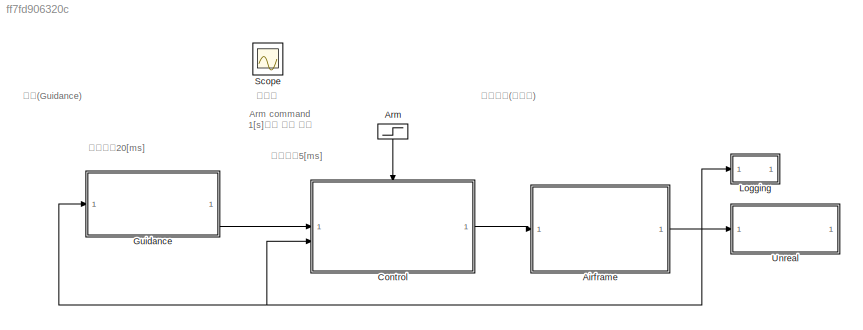
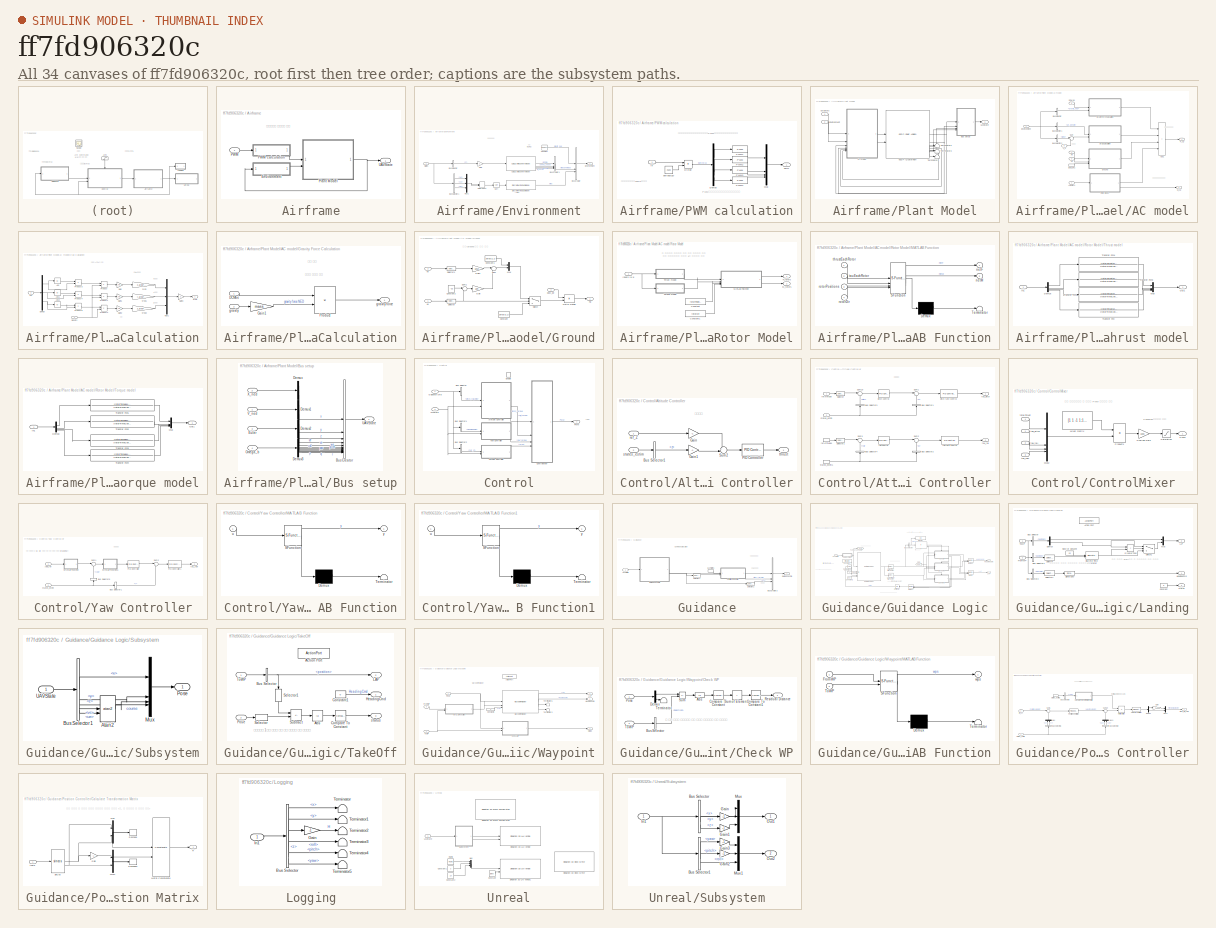
[diagram: thumbnail index - all 34 canvases of the model, root first then tree order]
MODEL slx_ff7fd906320c
KIND model
CONFIG AbsTol = auto
CONFIG EnableMultiTasking = on
CONFIG FixedStep = .005
CONFIG MaxStep = auto
CONFIG MinStep = auto
CONFIG RelTol = 1e-3
CONFIG SampleTimeConstraint = Unconstrained
CONFIG SolverName = ode23tb
CONFIG StartTime = 0.0
CONFIG StopTime = 130
BLOCK [SubSystem] Airframe
  VariantControl = plantModelFi==1
BLOCK [SubSystem] Airframe/Environment
  VariantControl = VSS_ENVIRONMENT_VARIABLE
BLOCK [BusCreator] Airframe/Environment/Bus Creator
  DisplayOption = bar
  InheritFromInputs = on
  Inputs = 3
BLOCK [BusCreator] Airframe/Environment/Bus Creator1
  DisplayOption = bar
  InheritFromInputs = on
  Inputs = 4
BLOCK [BusSelector] Airframe/Environment/Bus Selector
  OutputSignals = z
BLOCK [BusSelector] Airframe/Environment/Bus Selector1
  OutputSignals = ue,ve,we
BLOCK [Reference] Airframe/Environment/COESA Atmosphere Model  REF=aerolibatmos2/COESA Atmosphere Model
  SourceBlock = aerolibatmos2/COESA Atmosphere Model
  SourceType = Atmosphere Model
BLOCK [Constant] Airframe/Environment/Constant
  Value = [0; 0; 9.81]
  VectorParams1D = off
BLOCK [Reference] Airframe/Environment/Discrete Wind Gust Model  REF=aerolibwind2/Discrete Wind Gust Model
  NameLocation = top
  SourceBlock = aerolibwind2/Discrete Wind Gust Model
  SourceType = Discrete Wind Gust Model
BLOCK [DotProduct] Airframe/Environment/Dot Product
  OutDataTypeStr = Inherit: Inherit via internal rule
BLOCK [Outport] Airframe/Environment/Environment
  VectorParamsAs1DForOutWhenUnconnected = off
BLOCK [Gain] Airframe/Environment/Gain
  Gain = -1
BLOCK [Mux] Airframe/Environment/Mux1
  DisplayOption = bar
  Inputs = 3
BLOCK [Sqrt] Airframe/Environment/Sqrt
BLOCK [Inport] Airframe/Environment/States
BLOCK [Inport] Airframe/PWM
BLOCK [SubSystem] Airframe/PWM calculation
BLOCK [Demux] Airframe/PWM calculation/Demux
BLOCK [Product] Airframe/PWM calculation/Divide
  Inputs = */
BLOCK [Inport] Airframe/PWM calculation/In
BLOCK [Mux] Airframe/PWM calculation/Mux
  DisplayOption = bar
BLOCK [Reference] Airframe/PWM calculation/PWM1  REF=simulink/Discontinuities/PWM
  Commented = through
  DisableCoverage = on
  SourceBlock = simulink/Discontinuities/PWM
  SourceType = PWM
BLOCK [Reference] Airframe/PWM calculation/PWM2  REF=simulink/Discontinuities/PWM
  Commented = through
  DisableCoverage = on
  SourceBlock = simulink/Discontinuities/PWM
  SourceType = PWM
BLOCK [Reference] Airframe/PWM calculation/PWM3  REF=simulink/Discontinuities/PWM
  Commented = through
  DisableCoverage = on
  SourceBlock = simulink/Discontinuities/PWM
  SourceType = PWM
BLOCK [Reference] Airframe/PWM calculation/PWM4  REF=simulink/Discontinuities/PWM
  Commented = through
  DisableCoverage = on
  SourceBlock = simulink/Discontinuities/PWM
  SourceType = PWM
BLOCK [Constant] Airframe/PWM calculation/periods(μs)
  Value = 2500
BLOCK [Outport] Airframe/PWM calculation/pwm
BLOCK [SubSystem] Airframe/Plant Model
BLOCK [Reference] Airframe/Plant Model/6DOF (Quaternion)  REF=shared6dof/6DOF (Euler Angles)
  SourceBlock = shared6dof/6DOF (Euler Angles)
  SourceType = 6DOF EoM (Body Axis)
BLOCK [SubSystem] Airframe/Plant Model/AC model
BLOCK [Inport] Airframe/Plant Model/AC model/Actuators
BLOCK [Sum] Airframe/Plant Model/AC model/Add1
  IconShape = rectangular
  Inputs = ++++
BLOCK [BusSelector] Airframe/Plant Model/AC model/Bus Selector
  OutputSignals = Gravity_ned
BLOCK [BusSelector] Airframe/Plant Model/AC model/Bus Selector1
  OutputSignals = AtmosphereBus.air_density
BLOCK [BusSelector] Airframe/Plant Model/AC model/Bus Selector2
  OutputSignals = wind
BLOCK [Inport] Airframe/Plant Model/AC model/DCM_be
  Port = 5
BLOCK [InportShadow] Airframe/Plant Model/AC model/DCM_be1
  Port = 5
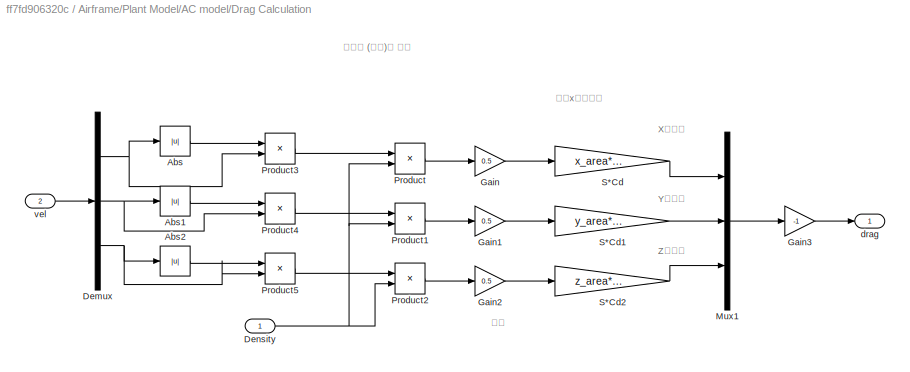
BLOCK [SubSystem] Airframe/Plant Model/AC model/Drag Calculation
BLOCK [Abs] Airframe/Plant Model/AC model/Drag Calculation/Abs
  SaturateOnIntegerOverflow = off
BLOCK [Abs] Airframe/Plant Model/AC model/Drag Calculation/Abs1
  SaturateOnIntegerOverflow = off
BLOCK [Abs] Airframe/Plant Model/AC model/Drag Calculation/Abs2
  SaturateOnIntegerOverflow = off
BLOCK [Demux] Airframe/Plant Model/AC model/Drag Calculation/Demux
  Outputs = 3
BLOCK [Inport] Airframe/Plant Model/AC model/Drag Calculation/Density
  Unit = kg/m^3
BLOCK [Gain] Airframe/Plant Model/AC model/Drag Calculation/Gain
  Gain = 0.5
BLOCK [Gain] Airframe/Plant Model/AC model/Drag Calculation/Gain1
  Gain = 0.5
BLOCK [Gain] Airframe/Plant Model/AC model/Drag Calculation/Gain2
  Gain = 0.5
BLOCK [Gain] Airframe/Plant Model/AC model/Drag Calculation/Gain3
  Gain = -1
BLOCK [Mux] Airframe/Plant Model/AC model/Drag Calculation/Mux1
  DisplayOption = bar
  Inputs = 3
BLOCK [Product] Airframe/Plant Model/AC model/Drag Calculation/Product
BLOCK [Product] Airframe/Plant Model/AC model/Drag Calculation/Product1
BLOCK [Product] Airframe/Plant Model/AC model/Drag Calculation/Product2
BLOCK [Product] Airframe/Plant Model/AC model/Drag Calculation/Product3
BLOCK [Product] Airframe/Plant Model/AC model/Drag Calculation/Product4
BLOCK [Product] Airframe/Plant Model/AC model/Drag Calculation/Product5
BLOCK [Gain] Airframe/Plant Model/AC model/Drag Calculation/S*Cd
  Gain = x_area*Cd
BLOCK [Gain] Airframe/Plant Model/AC model/Drag Calculation/S*Cd1
  Gain = y_area*Cd
BLOCK [Gain] Airframe/Plant Model/AC model/Drag Calculation/S*Cd2
  Gain = z_area*Cd
BLOCK [Outport] Airframe/Plant Model/AC model/Drag Calculation/drag
  Unit = N
  VectorParamsAs1DForOutWhenUnconnected = off
BLOCK [Inport] Airframe/Plant Model/AC model/Drag Calculation/vel
  Port = 2
  Unit = m/s
BLOCK [Inport] Airframe/Plant Model/AC model/Environment
  Port = 2
BLOCK [Outport] Airframe/Plant Model/AC model/F_cg
  Unit = N
  VectorParamsAs1DForOutWhenUnconnected = off
BLOCK [SubSystem] Airframe/Plant Model/AC model/Gravity Force Calculation
BLOCK [Inport] Airframe/Plant Model/AC model/Gravity Force Calculation/DCMbe
BLOCK [Gain] Airframe/Plant Model/AC model/Gravity Force Calculation/Gain1
  Gain = mass
BLOCK [Product] Airframe/Plant Model/AC model/Gravity Force Calculation/Product
  Multiplication = Matrix(*)
BLOCK [Inport] Airframe/Plant Model/AC model/Gravity Force Calculation/gravity
  Port = 2
  Unit = m/s^2
BLOCK [Outport] Airframe/Plant Model/AC model/Gravity Force Calculation/gravity force
  Unit = N
  VectorParamsAs1DForOutWhenUnconnected = off
BLOCK [SubSystem] Airframe/Plant Model/AC model/Ground
BLOCK [Constant] Airframe/Plant Model/AC model/Ground/Constant
  Value = zeros(3,1)
  VectorParams1D = off
BLOCK [Constant] Airframe/Plant Model/AC model/Ground/Constant1
  Value = zeros(2,1)
  VectorParams1D = off
BLOCK [Constant] Airframe/Plant Model/AC model/Ground/Constant2
  Value = -0.3
BLOCK [Inport] Airframe/Plant Model/AC model/Ground/DCM_be
  Port = 3
BLOCK [Outport] Airframe/Plant Model/AC model/Ground/Fg
BLOCK [Gain] Airframe/Plant Model/AC model/Ground/Gain
  Gain = 1e9
BLOCK [Gain] Airframe/Plant Model/AC model/Ground/Gain1
  Gain = 1e10
BLOCK [Product] Airframe/Plant Model/AC model/Ground/Matrix Multiply
  Multiplication = Matrix(*)
BLOCK [Mux] Airframe/Plant Model/AC model/Ground/Mux
  DisplayOption = bar
  Inputs = 2
BLOCK [Selector] Airframe/Plant Model/AC model/Ground/Selector
  IndexOptions = Index vector (dialog)
  Indices = 3
  InputPortWidth = 3
  OutputSizes = 1
BLOCK [Selector] Airframe/Plant Model/AC model/Ground/Selector1
  IndexOptions = Index vector (dialog)
  Indices = 3
  InputPortWidth = 3
  OutputSizes = 1
BLOCK [Sum] Airframe/Plant Model/AC model/Ground/Sum
  Inputs = |--
BLOCK [Sum] Airframe/Plant Model/AC model/Ground/Sum1
  Inputs = |-+
BLOCK [Switch] Airframe/Plant Model/AC model/Ground/Switch
  Criteria = u2 > Threshold
  InputSameDT = off
  SaturateOnIntegerOverflow = off
  Threshold = -eps
BLOCK [Inport] Airframe/Plant Model/AC model/Ground/Ve
  Port = 2
BLOCK [Inport] Airframe/Plant Model/AC model/Ground/Xe
BLOCK [Outport] Airframe/Plant Model/AC model/M_cg
  Port = 2
  Unit = N*m
  VectorParamsAs1DForOutWhenUnconnected = off
BLOCK [SubSystem] Airframe/Plant Model/AC model/Rotor Model
BLOCK [Constant] Airframe/Plant Model/AC model/Rotor Model/Constant
  Value = rotorPositions
BLOCK [Constant] Airframe/Plant Model/AC model/Rotor Model/Constant1
  Value = rotorDir
BLOCK [Outport] Airframe/Plant Model/AC model/Rotor Model/F_rotors
BLOCK [Inport] Airframe/Plant Model/AC model/Rotor Model/Inputs [0-1]
  NameLocation = top
BLOCK [SubSystem] Airframe/Plant Model/AC model/Rotor Model/MATLAB Function
  ErrorFcn = Stateflow.Translate.translate
  PermitHierarchicalResolution = ExplicitOnly
  SFBlockType = MATLAB Function
  TreatAsAtomicUnit = on
BLOCK [Demux] Airframe/Plant Model/AC model/Rotor Model/MATLAB Function/ Demux 
  Outputs = 1
BLOCK [S-Function] Airframe/Plant Model/AC model/Rotor Model/MATLAB Function/ SFunction 
  EnableBusSupport = off
  FunctionName = sf_sfun
  PortCounts = [4 3]
  SFcnIsStateOwnerBlock = off
  SFunctionDeploymentMode = off
  Tag = Stateflow S-Function 6
BLOCK [Terminator] Airframe/Plant Model/AC model/Rotor Model/MATLAB Function/ Terminator 
BLOCK [Outport] Airframe/Plant Model/AC model/Rotor Model/MATLAB Function/netF
  VectorParamsAs1DForOutWhenUnconnected = off
BLOCK [Outport] Airframe/Plant Model/AC model/Rotor Model/MATLAB Function/netM
  Port = 2
BLOCK [Inport] Airframe/Plant Model/AC model/Rotor Model/MATLAB Function/rotorDir
  Port = 4
BLOCK [Inport] Airframe/Plant Model/AC model/Rotor Model/MATLAB Function/rotorPositions
  Port = 3
BLOCK [Inport] Airframe/Plant Model/AC model/Rotor Model/MATLAB Function/tauEachRotor
  Port = 2
BLOCK [Inport] Airframe/Plant Model/AC model/Rotor Model/MATLAB Function/thrustEachRotor
BLOCK [Outport] Airframe/Plant Model/AC model/Rotor Model/M_rotors
  Port = 2
BLOCK [SubSystem] Airframe/Plant Model/AC model/Rotor Model/Thrust model
BLOCK [Demux] Airframe/Plant Model/AC model/Rotor Model/Thrust model/Demux
BLOCK [Inport] Airframe/Plant Model/AC model/Rotor Model/Thrust model/In1
BLOCK [Mux] Airframe/Plant Model/AC model/Rotor Model/Thrust model/Mux
  DisplayOption = bar
BLOCK [Outport] Airframe/Plant Model/AC model/Rotor Model/Thrust model/Out1
BLOCK [TransferFcn] Airframe/Plant Model/AC model/Rotor Model/Thrust model/Transfer Fcn
  Denominator = [rotorTimeConst 1]
  Numerator = [rotorThrustMax]
BLOCK [TransferFcn] Airframe/Plant Model/AC model/Rotor Model/Thrust model/Transfer Fcn2
  Denominator = [rotorTimeConst 1]
  Numerator = [rotorThrustMax]
BLOCK [TransferFcn] Airframe/Plant Model/AC model/Rotor Model/Thrust model/Transfer Fcn3
  Denominator = [rotorTimeConst 1]
  Numerator = [rotorThrustMax]
BLOCK [TransferFcn] Airframe/Plant Model/AC model/Rotor Model/Thrust model/Transfer Fcn4
  Denominator = [rotorTimeConst 1]
  Numerator = [rotorThrustMax]
BLOCK [SubSystem] Airframe/Plant Model/AC model/Rotor Model/Torque model
BLOCK [Demux] Airframe/Plant Model/AC model/Rotor Model/Torque model/Demux
BLOCK [Inport] Airframe/Plant Model/AC model/Rotor Model/Torque model/In1
BLOCK [Mux] Airframe/Plant Model/AC model/Rotor Model/Torque model/Mux
  DisplayOption = bar
BLOCK [Outport] Airframe/Plant Model/AC model/Rotor Model/Torque model/Out1
BLOCK [TransferFcn] Airframe/Plant Model/AC model/Rotor Model/Torque model/Transfer Fcn1
  Denominator = [rotorTimeConst 1]
  Numerator = [rotorTorqueMax]
BLOCK [TransferFcn] Airframe/Plant Model/AC model/Rotor Model/Torque model/Transfer Fcn2
  Denominator = [rotorTimeConst 1]
  Numerator = [rotorTorqueMax]
BLOCK [TransferFcn] Airframe/Plant Model/AC model/Rotor Model/Torque model/Transfer Fcn3
  Denominator = [rotorTimeConst 1]
  Numerator = [rotorTorqueMax]
BLOCK [TransferFcn] Airframe/Plant Model/AC model/Rotor Model/Torque model/Transfer Fcn4
  Denominator = [rotorTimeConst 1]
  Numerator = [rotorTorqueMax]
BLOCK [Sum] Airframe/Plant Model/AC model/Sum
  Inputs = |-+
BLOCK [Inport] Airframe/Plant Model/AC model/V_b
  Port = 6
  Unit = m/s
BLOCK [Inport] Airframe/Plant Model/AC model/Ve
  Port = 3
BLOCK [Inport] Airframe/Plant Model/AC model/Xe
  Port = 4
BLOCK [Inport] Airframe/Plant Model/Actuators
BLOCK [SubSystem] Airframe/Plant Model/Bus setup
BLOCK [BusCreator] Airframe/Plant Model/Bus setup/Bus Creator
  DisplayOption = bar
  InheritFromInputs = on
  Inputs = 12
  NonVirtualBus = on
  OutDataTypeStr = Bus: UAVStateBUS
BLOCK [Demux] Airframe/Plant Model/Bus setup/Demux
  Outputs = 3
BLOCK [Demux] Airframe/Plant Model/Bus setup/Demux1
  Outputs = 3
BLOCK [Demux] Airframe/Plant Model/Bus setup/Demux2
  Outputs = 3
BLOCK [Demux] Airframe/Plant Model/Bus setup/Demux3
  Outputs = 3
BLOCK [Inport] Airframe/Plant Model/Bus setup/Euler
  Port = 3
  PortDimensions = 3
  Unit = rad
BLOCK [Inport] Airframe/Plant Model/Bus setup/Omega_b
  Port = 4
  PortDimensions = 3
  Unit = rad/s
BLOCK [Outport] Airframe/Plant Model/Bus setup/UAVState
BLOCK [Inport] Airframe/Plant Model/Bus setup/V_ned
  PortDimensions = 3
  Unit = m/second
BLOCK [Inport] Airframe/Plant Model/Bus setup/X_ned
  Port = 2
  PortDimensions = 3
  Unit = m
BLOCK [Inport] Airframe/Plant Model/Environment
  Port = 2
BLOCK [Terminator] Airframe/Plant Model/Terminator1
BLOCK [Terminator] Airframe/Plant Model/Terminator2
BLOCK [Terminator] Airframe/Plant Model/Terminator3
BLOCK [Outport] Airframe/Plant Model/UAVState
  VectorParamsAs1DForOutWhenUnconnected = off
BLOCK [Outport] Airframe/UAVState
  OutDataTypeStr = Bus: UAVStateBUS
BLOCK [Step] Arm
  NameLocation = top
  SampleTime = UAVsampleTime
BLOCK [SubSystem] Control
  SystemSampleTime = UAVsampleTime
  TreatAsAtomicUnit = on
  VariantControl = guidanceType==1
BLOCK [SubSystem] Control/Altitude Controller
BLOCK [BusSelector] Control/Altitude Controller/Bus Selector1
  OutputSignals = z
BLOCK [Gain] Control/Altitude Controller/Gain
  Gain = -1
BLOCK [Gain] Control/Altitude Controller/Gain1
  Gain = -1
BLOCK [Reference] Control/Altitude Controller/PID Controller  REF=slpidlib/PID Controller
  LibrarySourceBlock = simulink/Continuous/PID Controller
  SourceBlock = slpidlib/PID Controller
  SourceType = PID 1dof
BLOCK [Sum] Control/Altitude Controller/Sum2
  Inputs = +-|
  SaturateOnIntegerOverflow = on
BLOCK [Inport] Control/Altitude Controller/ref_Z
BLOCK [Inport] Control/Altitude Controller/states_estim
  OutDataTypeStr = Bus: UAVStateBUS
  Port = 2
BLOCK [Outport] Control/Altitude Controller/thrust
  VectorParamsAs1DForOutWhenUnconnected = off
BLOCK [SubSystem] Control/Attitude Controller
BLOCK [BusSelector] Control/Attitude Controller/Bus Selector1
  OutputSignals = q
BLOCK [BusSelector] Control/Attitude Controller/Bus Selector2
  OutputSignals = p
BLOCK [BusSelector] Control/Attitude Controller/Bus Selector3
  OutputSignals = pitch
BLOCK [BusSelector] Control/Attitude Controller/Bus Selector4
  OutputSignals = roll
BLOCK [Selector] Control/Attitude Controller/Selector
  IndexOptions = Index vector (dialog)
  Indices = 1
  InputPortWidth = 2
  OutputSizes = 1
BLOCK [Selector] Control/Attitude Controller/Selector1
  IndexOptions = Index vector (dialog)
  Indices = 2
  InputPortWidth = 2
  OutputSizes = 1
BLOCK [Sum] Control/Attitude Controller/Sum1
  Inputs = |+-
BLOCK [Sum] Control/Attitude Controller/Sum19
  Inputs = |+-
BLOCK [Sum] Control/Attitude Controller/Sum2
  Inputs = |+-
BLOCK [Sum] Control/Attitude Controller/Sum3
  Inputs = |+-
BLOCK [Reference] Control/Attitude Controller/pitch control  REF=slpidlib/PID Controller
  SourceBlock = slpidlib/PID Controller
  SourceType = PID 1dof
BLOCK [Reference] Control/Attitude Controller/pitch rate control  REF=slpidlib/PID Controller
  SourceBlock = slpidlib/PID Controller
  SourceType = PID 1dof
BLOCK [Inport] Control/Attitude Controller/refAttitude
BLOCK [InportShadow] Control/Attitude Controller/refAttitude1
BLOCK [Reference] Control/Attitude Controller/roll control  REF=slpidlib/PID Controller
  SourceBlock = slpidlib/PID Controller
  SourceType = PID 1dof
BLOCK [Reference] Control/Attitude Controller/roll rate control  REF=slpidlib/PID Controller
  SourceBlock = slpidlib/PID Controller
  SourceType = PID 1dof
BLOCK [Inport] Control/Attitude Controller/states_estim
  OutDataTypeStr = Bus: UAVStateBUS
  Port = 2
BLOCK [InportShadow] Control/Attitude Controller/states_estim1
  OutDataTypeStr = Bus: UAVStateBUS
  Port = 2
BLOCK [Outport] Control/Attitude Controller/tau_pitch
  VectorParamsAs1DForOutWhenUnconnected = off
BLOCK [Outport] Control/Attitude Controller/tau_roll
  Port = 2
  VectorParamsAs1DForOutWhenUnconnected = off
BLOCK [BusSelector] Control/Bus Selector
  OutputSignals = pitch_roll_Cmd
BLOCK [BusSelector] Control/Bus Selector1
  OutputSignals = HeadingCmd
BLOCK [BusSelector] Control/Bus Selector2
  OutputSignals = ref_Z
BLOCK [SubSystem] Control/ControlMixer
BLOCK [Constant] Control/ControlMixer/Mixer matrix
  OutDataTypeStr = Inherit: Inherit via back propagation
  SampleTime = -1
  Value = [1 1 -1 1;1 -1 1 1;1 1 1 -1;1 -1 -1 -1]
BLOCK [Mux] Control/ControlMixer/Mux2
  DisplayOption = bar
BLOCK [Outport] Control/ControlMixer/PWM
  VectorParamsAs1DForOutWhenUnconnected = off
BLOCK [Product] Control/ControlMixer/Product1
  Multiplication = Matrix(*)
  RndMeth = Zero
BLOCK [Saturate] Control/ControlMixer/Saturation
  LowerLimit = 0
  UpperLimit = 2500
BLOCK [Gain] Control/ControlMixer/Scaling Gain
  Gain = 1000
BLOCK [Inport] Control/ControlMixer/tau_pitch
BLOCK [Inport] Control/ControlMixer/tau_roll
  Port = 2
BLOCK [Inport] Control/ControlMixer/tau_yaw
  Port = 3
BLOCK [Inport] Control/ControlMixer/totalThrust
  Port = 4
BLOCK [EnablePort] Control/Enable
BLOCK [Inport] Control/Guidance cmd
  OutDataTypeStr = Bus: GuidanceBUS
BLOCK [Outport] Control/PWM
  VectorParamsAs1DForOutWhenUnconnected = off
BLOCK [Inport] Control/UAVState
  OutDataTypeStr = Bus: UAVStateBUS
  Port = 2
BLOCK [SubSystem] Control/Yaw Controller
BLOCK [BusSelector] Control/Yaw Controller/Bus Selector1
  OutputSignals = r
BLOCK [BusSelector] Control/Yaw Controller/Bus Selector5
  NameLocation = right
  OutputSignals = yaw
BLOCK [SubSystem] Control/Yaw Controller/MATLAB Function
  ErrorFcn = Stateflow.Translate.translate
  PermitHierarchicalResolution = ExplicitOnly
  SFBlockType = MATLAB Function
  TreatAsAtomicUnit = on
BLOCK [Demux] Control/Yaw Controller/MATLAB Function/ Demux 
  Outputs = 1
BLOCK [S-Function] Control/Yaw Controller/MATLAB Function/ SFunction 
  EnableBusSupport = off
  FunctionName = sf_sfun
  PortCounts = [1 2]
  SFcnIsStateOwnerBlock = off
  SFunctionDeploymentMode = off
  Tag = Stateflow S-Function 3
BLOCK [Terminator] Control/Yaw Controller/MATLAB Function/ Terminator 
BLOCK [Inport] Control/Yaw Controller/MATLAB Function/u
BLOCK [Outport] Control/Yaw Controller/MATLAB Function/y
BLOCK [SubSystem] Control/Yaw Controller/MATLAB Function1
  ErrorFcn = Stateflow.Translate.translate
  PermitHierarchicalResolution = ExplicitOnly
  SFBlockType = MATLAB Function
  TreatAsAtomicUnit = on
BLOCK [Demux] Control/Yaw Controller/MATLAB Function1/ Demux 
  Outputs = 1
BLOCK [S-Function] Control/Yaw Controller/MATLAB Function1/ SFunction 
  EnableBusSupport = off
  FunctionName = sf_sfun
  PortCounts = [1 2]
  SFcnIsStateOwnerBlock = off
  SFunctionDeploymentMode = off
  Tag = Stateflow S-Function 1
BLOCK [Terminator] Control/Yaw Controller/MATLAB Function1/ Terminator 
BLOCK [Inport] Control/Yaw Controller/MATLAB Function1/u
BLOCK [Outport] Control/Yaw Controller/MATLAB Function1/y
BLOCK [Reference] Control/Yaw Controller/PID Controller  REF=slpidlib/PID Controller
  LibrarySourceBlock = simulink/Continuous/PID Controller
  SourceBlock = slpidlib/PID Controller
  SourceType = PID 1dof
BLOCK [Reference] Control/Yaw Controller/PID Controller1  REF=slpidlib/PID Controller
  LibrarySourceBlock = simulink/Continuous/PID Controller
  SourceBlock = slpidlib/PID Controller
  SourceType = PID 1dof
BLOCK [Sum] Control/Yaw Controller/Sum1
  Inputs = |+-
  SaturateOnIntegerOverflow = on
BLOCK [Sum] Control/Yaw Controller/Sum2
  Inputs = |+-
  OutDataTypeStr = double
BLOCK [Inport] Control/Yaw Controller/states_estim
  NameLocation = top
  OutDataTypeStr = Bus: UAVStateBUS
  Port = 2
BLOCK [Outport] Control/Yaw Controller/tau_yaw
  VectorParamsAs1DForOutWhenUnconnected = off
BLOCK [Inport] Control/Yaw Controller/yaw_ref
BLOCK [SubSystem] Guidance
  SystemSampleTime = UAVsampleTime*4
  TreatAsAtomicUnit = on
BLOCK [BusCreator] Guidance/Bus Creator3
  DisplayOption = bar
  InheritFromInputs = on
  Inputs = 3
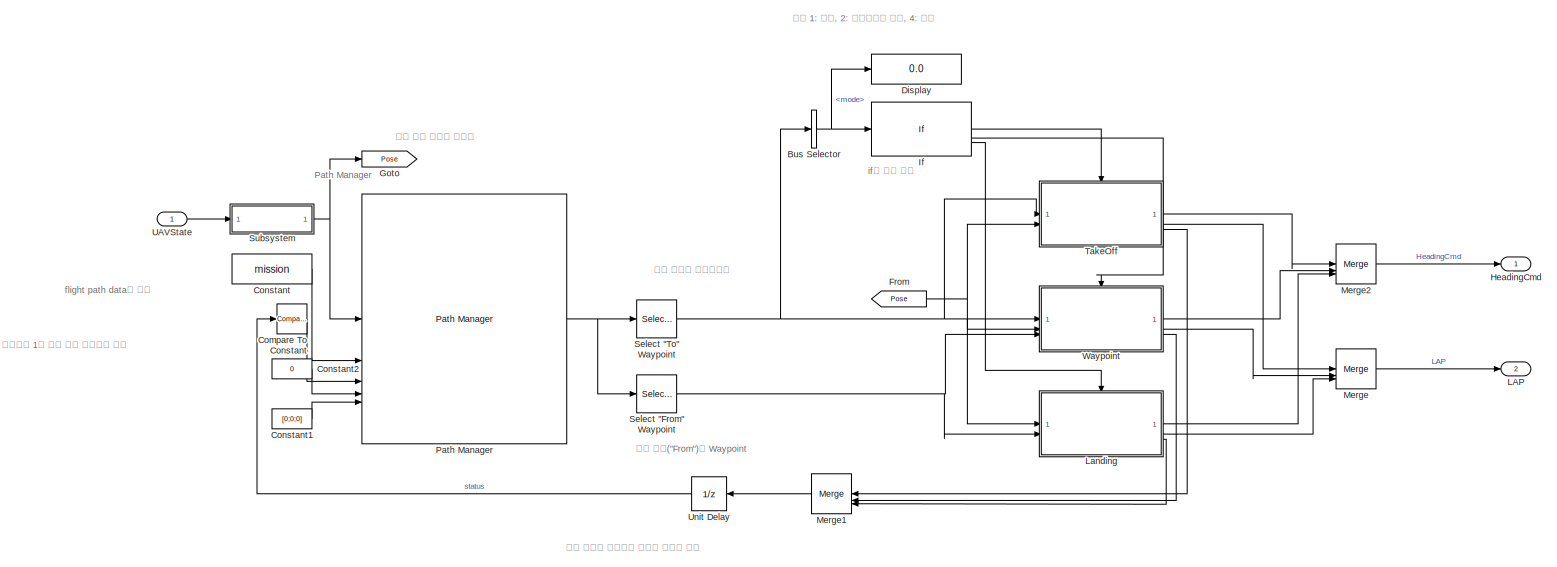
[diagram: Guidance/Guidance Logic - part 1/1, most of the canvas]
BLOCK [SubSystem] Guidance/Guidance Logic
BLOCK [BusSelector] Guidance/Guidance Logic/Bus Selector
  OutputSignals = mode
BLOCK [Reference] Guidance/Guidance Logic/Compare To Constant  REF=simulink/Logic and Bit
Operations/Compare
To Constant
  SourceBlock = simulink/Logic and Bit\nOperations/Compare\nTo Constant
  SourceType = Compare To Constant
BLOCK [Constant] Guidance/Guidance Logic/Constant
  OutDataTypeStr = Bus: UAVPathManagerBus
  Value = mission
BLOCK [Constant] Guidance/Guidance Logic/Constant1
  Value = [0;0;0]
  VectorParams1D = off
BLOCK [Constant] Guidance/Guidance Logic/Constant2
  OutDataTypeStr = uint8
  Value = 0
  VectorParams1D = off
BLOCK [Display] Guidance/Guidance Logic/Display
  Decimation = 1
BLOCK [From] Guidance/Guidance Logic/From
  GotoTag = Pose
BLOCK [Goto] Guidance/Guidance Logic/Goto
  GotoTag = Pose
BLOCK [Outport] Guidance/Guidance Logic/HeadingCmd
BLOCK [If] Guidance/Guidance Logic/If
  ElseIfExpressions = u1 == 2
  IfExpression = u1 == 1
BLOCK [Outport] Guidance/Guidance Logic/LAP
  Port = 2
BLOCK [SubSystem] Guidance/Guidance Logic/Landing
  TreatAsAtomicUnit = on
BLOCK [ActionPort] Guidance/Guidance Logic/Landing/Action Port
  ActionPortLabel = else
BLOCK [BusSelector] Guidance/Guidance Logic/Landing/Bus Selector
  OutputSignals = position
BLOCK [BusSelector] Guidance/Guidance Logic/Landing/Bus Selector1
  OutputSignals = position
BLOCK [BusSelector] Guidance/Guidance Logic/Landing/Bus Selector2
  OutputSignals = params
BLOCK [Constant] Guidance/Guidance Logic/Landing/Constant
  OutDataTypeStr = boolean
  Value = 0
BLOCK [Demux] Guidance/Guidance Logic/Landing/Demux
  Outputs = [2 1]
BLOCK [DiscreteIntegrator] Guidance/Guidance Logic/Landing/Discrete-Time Integrator
  ICPrevOutput = DiscIntNeverNeededParam
  ICPrevScaledInput = DiscIntNeverNeededParam
  InitialConditionSetting = Auto
  InitialConditionSource = external
  LimitOutput = on
  SampleTime = -1
  UpperSaturationLimit = 0
BLOCK [Inport] Guidance/Guidance Logic/Landing/FromWP
  Port = 2
BLOCK [RelationalOperator] Guidance/Guidance Logic/Landing/GreaterThan
  InputSameDT = off
  Operator = <
  OutDataTypeStr = boolean
  RndMeth = Simplest
BLOCK [Outport] Guidance/Guidance Logic/Landing/HeadingCmd
BLOCK [Outport] Guidance/Guidance Logic/Landing/LAP
  Port = 2
BLOCK [Mux] Guidance/Guidance Logic/Landing/Mux
  DisplayOption = bar
  Inputs = 2
BLOCK [Constant] Guidance/Guidance Logic/Landing/Rate of descent
  NameLocation = top
  Value = 0.2
BLOCK [Selector] Guidance/Guidance Logic/Landing/Selector
  IndexOptions = Index vector (dialog)
  Indices = 3
  InputPortWidth = 3
  OutputSizes = 1
BLOCK [Selector] Guidance/Guidance Logic/Landing/Selector1
  IndexOptions = Index vector (dialog)
  Indices = 1
  InputPortWidth = 4
  OutputSizes = 1
BLOCK [SignalConversion] Guidance/Guidance Logic/Landing/Signal Copy
  OverrideOpt = off
BLOCK [Switch] Guidance/Guidance Logic/Landing/Switch1
  Criteria = u2 > Threshold
  InputSameDT = off
  SaturateOnIntegerOverflow = off
BLOCK [Inport] Guidance/Guidance Logic/Landing/ToWP
BLOCK [Outport] Guidance/Guidance Logic/Landing/status
  Port = 3
BLOCK [Merge] Guidance/Guidance Logic/Merge
  Inputs = 3
BLOCK [Merge] Guidance/Guidance Logic/Merge1
  Inputs = 3
  NameLocation = top
BLOCK [Merge] Guidance/Guidance Logic/Merge2
  Inputs = 3
BLOCK [Reference] Guidance/Guidance Logic/Path Manager  REF=uavalgslib/Path Manager
  SourceBlock = uavalgslib/Path Manager
  SourceType = Path Manager
BLOCK [Selector] Guidance/Guidance Logic/Select "From" Waypoint
  IndexOptions = Index vector (dialog)
  Indices = 2
  InputPortWidth = 2
  OutputSizes = 1
BLOCK [Selector] Guidance/Guidance Logic/Select "To" Waypoint
  IndexOptions = Index vector (dialog)
  Indices = 1
  InputPortWidth = 2
  OutputSizes = 1
BLOCK [SubSystem] Guidance/Guidance Logic/Subsystem
BLOCK [Trigonometry] Guidance/Guidance Logic/Subsystem/Atan2
  Operator = atan2
BLOCK [BusSelector] Guidance/Guidance Logic/Subsystem/Bus Selector1
  NameLocation = top
  OutputSignals = x,y,z,ve,ue
BLOCK [Mux] Guidance/Guidance Logic/Subsystem/Mux
  DisplayOption = bar
BLOCK [Outport] Guidance/Guidance Logic/Subsystem/Pose
BLOCK [Inport] Guidance/Guidance Logic/Subsystem/UAVState
  OutDataTypeStr = Bus: UAVStateBUS
BLOCK [SubSystem] Guidance/Guidance Logic/TakeOff
  TreatAsAtomicUnit = on
BLOCK [Abs] Guidance/Guidance Logic/TakeOff/Abs
  SaturateOnIntegerOverflow = off
BLOCK [ActionPort] Guidance/Guidance Logic/TakeOff/Action Port
  ActionPortLabel = if(u1 == 1)
BLOCK [BusSelector] Guidance/Guidance Logic/TakeOff/Bus Selector
  OutputSignals = position
BLOCK [Reference] Guidance/Guidance Logic/TakeOff/Compare To Constant  REF=simulink/Logic and Bit
Operations/Compare
To Constant
  SourceBlock = simulink/Logic and Bit\nOperations/Compare\nTo Constant
  SourceType = Compare To Constant
BLOCK [Constant] Guidance/Guidance Logic/TakeOff/Constant1
  Value = 0
BLOCK [Outport] Guidance/Guidance Logic/TakeOff/HeadingCmd
BLOCK [Outport] Guidance/Guidance Logic/TakeOff/LAP
  Port = 2
BLOCK [Inport] Guidance/Guidance Logic/TakeOff/Pose
  Port = 2
BLOCK [Selector] Guidance/Guidance Logic/TakeOff/Selector
  IndexOptions = Index vector (dialog)
  Indices = 3
  InputPortWidth = 4
  OutputSizes = 1
BLOCK [Selector] Guidance/Guidance Logic/TakeOff/Selector1
  IndexOptions = Index vector (dialog)
  Indices = 3
  InputPortWidth = 3
  NameLocation = left
  OutputSizes = 1
BLOCK [Sum] Guidance/Guidance Logic/TakeOff/Subtract
  IconShape = rectangular
  Inputs = +-
BLOCK [Inport] Guidance/Guidance Logic/TakeOff/ToWP
BLOCK [Outport] Guidance/Guidance Logic/TakeOff/status
  Port = 3
BLOCK [Inport] Guidance/Guidance Logic/UAVState
BLOCK [UnitDelay] Guidance/Guidance Logic/Unit Delay
  HasFrameUpgradeWarning = on
  SampleTime = -1
BLOCK [SubSystem] Guidance/Guidance Logic/Waypoint
BLOCK [ActionPort] Guidance/Guidance Logic/Waypoint/Action Port
  ActionPortLabel = elseif(u1 == 2)
BLOCK [SubSystem] Guidance/Guidance Logic/Waypoint/Check WP
BLOCK [Abs] Guidance/Guidance Logic/Waypoint/Check WP/Abs
  SaturateOnIntegerOverflow = off
BLOCK [BusSelector] Guidance/Guidance Logic/Waypoint/Check WP/Bus Selector
  OutputSignals = position
BLOCK [Reference] Guidance/Guidance Logic/Waypoint/Check WP/Compare To Constant  REF=simulink/Logic and Bit
Operations/Compare
To Constant
  SourceBlock = simulink/Logic and Bit\nOperations/Compare\nTo Constant
  SourceType = Compare To Constant
BLOCK [Reference] Guidance/Guidance Logic/Waypoint/Check WP/Compare To Constant1  REF=simulink/Logic and Bit
Operations/Compare
To Constant
  SourceBlock = simulink/Logic and Bit\nOperations/Compare\nTo Constant
  SourceType = Compare To Constant
BLOCK [Demux] Guidance/Guidance Logic/Waypoint/Check WP/Demux
  Outputs = [3 1]
BLOCK [Inport] Guidance/Guidance Logic/Waypoint/Check WP/Pose
BLOCK [Outport] Guidance/Guidance Logic/Waypoint/Check WP/Residual Distance
BLOCK [Sum] Guidance/Guidance Logic/Waypoint/Check WP/Sum
  IconShape = rectangular
  Inputs = -+
BLOCK [Sum] Guidance/Guidance Logic/Waypoint/Check WP/Sum of Elements
  IconShape = rectangular
  Inputs = +
BLOCK [Terminator] Guidance/Guidance Logic/Waypoint/Check WP/Terminator
BLOCK [Inport] Guidance/Guidance Logic/Waypoint/Check WP/ToWP
  Port = 2
BLOCK [Constant] Guidance/Guidance Logic/Waypoint/Constant3
  Value = 3
BLOCK [Inport] Guidance/Guidance Logic/Waypoint/FromWP
  Port = 3
BLOCK [Outport] Guidance/Guidance Logic/Waypoint/HeadingCmd
BLOCK [Outport] Guidance/Guidance Logic/Waypoint/LAP
  Port = 2
BLOCK [SubSystem] Guidance/Guidance Logic/Waypoint/MATLAB Function
  ErrorFcn = Stateflow.Translate.translate
  LibrarySourceBlock = simulink/User-Defined\nFunctions/MATLAB Function
  PermitHierarchicalResolution = ExplicitOnly
  SFBlockType = MATLAB Function
  TreatAsAtomicUnit = on
BLOCK [Demux] Guidance/Guidance Logic/Waypoint/MATLAB Function/ Demux 
  Outputs = 1
BLOCK [S-Function] Guidance/Guidance Logic/Waypoint/MATLAB Function/ SFunction 
  EnableBusSupport = off
  FunctionName = sf_sfun
  PortCounts = [2 2]
  SFcnIsStateOwnerBlock = off
  SFunctionDeploymentMode = off
  Tag = Stateflow S-Function 2
BLOCK [Terminator] Guidance/Guidance Logic/Waypoint/MATLAB Function/ Terminator 
BLOCK [Inport] Guidance/Guidance Logic/Waypoint/MATLAB Function/FromWP
BLOCK [Inport] Guidance/Guidance Logic/Waypoint/MATLAB Function/ToWP
  Port = 2
BLOCK [Outport] Guidance/Guidance Logic/Waypoint/MATLAB Function/wps
BLOCK [Inport] Guidance/Guidance Logic/Waypoint/Pose
BLOCK [Terminator] Guidance/Guidance Logic/Waypoint/Terminator3
BLOCK [Terminator] Guidance/Guidance Logic/Waypoint/Terminator5
BLOCK [Inport] Guidance/Guidance Logic/Waypoint/ToWP
  Port = 2
BLOCK [Reference] Guidance/Guidance Logic/Waypoint/Waypoint Follower  REF=uavalgslib/Waypoint Follower
  SourceBlock = uavalgslib/Waypoint Follower
  SourceType = uav.sluav.internal.system.WaypointFollower
BLOCK [Outport] Guidance/Guidance Logic/Waypoint/status
  Port = 3
BLOCK [Outport] Guidance/Guidance cmd
  OutDataTypeStr = Bus: GuidanceBUS
BLOCK [SubSystem] Guidance/Position Controller
BLOCK [BusSelector] Guidance/Position Controller/Bus Selector1
  NameLocation = right
  OutputSignals = x,y
BLOCK [BusSelector] Guidance/Position Controller/Bus Selector2
  NameLocation = right
  OutputSignals = ue,ve
BLOCK [BusSelector] Guidance/Position Controller/Bus Selector3
  OutputSignals = yaw
BLOCK [SubSystem] Guidance/Position Controller/Calculate Transformation Matrix
BLOCK [Gain] Guidance/Position Controller/Calculate Transformation Matrix/Gain
  Gain = -1
BLOCK [Concatenate] Guidance/Position Controller/Calculate Transformation Matrix/Matrix Concatenate
  Mode = Multidimensional array
BLOCK [Mux] Guidance/Position Controller/Calculate Transformation Matrix/Mux
  DisplayOption = bar
  Inputs = 2
BLOCK [Mux] Guidance/Position Controller/Calculate Transformation Matrix/Mux1
  DisplayOption = bar
  Inputs = 2
BLOCK [Outport] Guidance/Position Controller/Calculate Transformation Matrix/R
BLOCK [Reshape] Guidance/Position Controller/Calculate Transformation Matrix/Reshape
  OutputDimensionality = Row vector (2-D)
BLOCK [Reshape] Guidance/Position Controller/Calculate Transformation Matrix/Reshape1
  OutputDimensionality = Row vector (2-D)
BLOCK [Trigonometry] Guidance/Position Controller/Calculate Transformation Matrix/SinCos
  Operator = sincos
BLOCK [Inport] Guidance/Position Controller/Calculate Transformation Matrix/theta
BLOCK [Demux] Guidance/Position Controller/Demux
  Outputs = 2
BLOCK [Gain] Guidance/Position Controller/Gain
  Gain = -1
BLOCK [Product] Guidance/Position Controller/MatrixMultiply
  Multiplication = Matrix(*)
BLOCK [Mux] Guidance/Position Controller/Mux
  DisplayOption = bar
  Inputs = 2
  NameLocation = right
BLOCK [Mux] Guidance/Position Controller/Mux1
  DisplayOption = bar
  Inputs = 2
  NameLocation = right
BLOCK [Mux] Guidance/Position Controller/Mux2
  DisplayOption = bar
  Inputs = 2
BLOCK [Reference] Guidance/Position Controller/Position controller  REF=slpidlib/PID Controller
  SourceBlock = slpidlib/PID Controller
  SourceType = PID 1dof
BLOCK [Sum] Guidance/Position Controller/Sum1
  Inputs = |+-
BLOCK [Sum] Guidance/Position Controller/Sum19
  Inputs = |+-
BLOCK [Reference] Guidance/Position Controller/Velocity controller  REF=slpidlib/PID Controller
  SourceBlock = slpidlib/PID Controller
  SourceType = PID 1dof
BLOCK [Outport] Guidance/Position Controller/pitch_roll_cmd
  VectorParamsAs1DForOutWhenUnconnected = off
BLOCK [Inport] Guidance/Position Controller/ref_XY
  Port = 2
BLOCK [Inport] Guidance/Position Controller/states_estim
  OutDataTypeStr = Bus: UAVStateBUS
BLOCK [InportShadow] Guidance/Position Controller/states_estim1
  OutDataTypeStr = Bus: UAVStateBUS
BLOCK [Selector] Guidance/Selector1
  IndexOptions = Index vector (dialog)
  Indices = [1 2]
  InputPortWidth = 3
  OutputSizes = 1
BLOCK [Selector] Guidance/Selector2
  IndexOptions = Index vector (dialog)
  Indices = 3
  InputPortWidth = 3
  OutputSizes = 1
BLOCK [Inport] Guidance/UAVState
  OutDataTypeStr = Bus: UAVStateBUS
BLOCK [InportShadow] Guidance/UAVState1
  OutDataTypeStr = Bus: UAVStateBUS
BLOCK [SubSystem] Logging
BLOCK [BusSelector] Logging/Bus Selector
  OutputSignals = x,y,z,roll,pitch,yaw
BLOCK [Gain] Logging/Gain
  Gain = -1
BLOCK [Inport] Logging/In1
BLOCK [Terminator] Logging/Terminator
BLOCK [Terminator] Logging/Terminator1
BLOCK [Terminator] Logging/Terminator2
BLOCK [Terminator] Logging/Terminator3
BLOCK [Terminator] Logging/Terminator4
BLOCK [Terminator] Logging/Terminator5
BLOCK [Scope] Scope
  ActiveDisplayYMaximum = 91.250000000000014
  ActiveDisplayYMinimum = -21.25
  Floating = off
  GraphicalSettings = {"AxesScalingProperties":{"AlignXAxis":"Center","AlignYAxis":"Center","AutoScaleXAxisLimits":false,"AxesScaling":"Manual","AxesScalingNumUpdates":10,"ExpandOnly":true,"ScaleAxesLimitsAtStop":false,"XAxisDataRange":100,"YAxisDataRange":80},"DisplayProperties":{"ColorOrder":["auto","auto","auto","auto","auto","auto","auto","auto","auto","auto","auto","auto","auto","auto","auto","auto","auto","auto",...<+2130ch>
  IOType = viewer
  MultipleDisplayCache = [{"MaxYLimMag":91.250000000000014,"MaxYLimReal":91.250000000000014,"MinYLimMag":0,"MinYLimReal":-21.25,"PlotAsMagnitudePhase":false,"ShowGrid":true,"ShowLegend":false,"Title":"%<SignalLabel>","YLabel":""}]
  NumInputPorts = 1
  ScopeFrameLocation = window
  WasSavedAsWebScope = on
  WindowPosition = [360.000000,190.000000,560.000000,420.000000,]
BLOCK [SubSystem] Unreal
  VariantControl = Unreal
BLOCK [Constant] Unreal/Constant
  Value = [pi 0 0]
BLOCK [Constant] Unreal/Constant1
  Value = 3
BLOCK [Constant] Unreal/Constant2
  Value = 10
BLOCK [Mux] Unreal/Mux
  DisplayOption = bar
  Inputs = 3
BLOCK [Reference] Unreal/Ramp  REF=simulink/Sources/Ramp
  SourceBlock = simulink/Sources/Ramp
  SourceType = Ramp
BLOCK [Reference] Unreal/Simulation 3D Scene Configuration  REF=sim3dlib/Simulation 3D Scene Configuration
  LibrarySourceBlock = uavsim3dlib/Simulation 3D Scene Configuration
  Priority = 0
  SourceBlock = sim3dlib/Simulation 3D Scene Configuration
  SourceType = Simulation 3D Scene Configuration
BLOCK [Reference] Unreal/Simulation 3D UAV Vehicle  REF=uavsim3dlib/Simulation 3D UAV Vehicle
  Priority = -1
  SourceBlock = uavsim3dlib/Simulation 3D UAV Vehicle
  SourceType = Simulation 3D UAV Vehicle
BLOCK [Reference] Unreal/Simulation 3D UAV Vehicle1  REF=uavsim3dlib/Simulation 3D UAV Vehicle
  Priority = -1
  SourceBlock = uavsim3dlib/Simulation 3D UAV Vehicle
  SourceType = Simulation 3D UAV Vehicle
BLOCK [Reference] Unreal/Simulation 3D Video Writer  REF=sim3dlib/Simulation 3D Video Writer
  Commented = on
  LibrarySourceBlock = sl3dlib/Simulation 3D/Utilities/Simulation 3D Video Writer
  Priority = 1
  SourceBlock = sim3dlib/Simulation 3D Video Writer
  SourceType = Simulation3DVideoWriterSystem
BLOCK [SubSystem] Unreal/Subsystem
BLOCK [BusSelector] Unreal/Subsystem/Bus Selector
  OutputSignals = x,y,z
BLOCK [BusSelector] Unreal/Subsystem/Bus Selector1
  OutputSignals = yaw,pitch,roll
BLOCK [Gain] Unreal/Subsystem/Gain
  Gain = -1
BLOCK [Gain] Unreal/Subsystem/Gain1
  Gain = -1
BLOCK [Gain] Unreal/Subsystem/Gain2
  Gain = -1
BLOCK [Gain] Unreal/Subsystem/Gain3
  Gain = -1
BLOCK [Inport] Unreal/Subsystem/In1
BLOCK [Mux] Unreal/Subsystem/Mux
  DisplayOption = bar
  Inputs = 3
BLOCK [Mux] Unreal/Subsystem/Mux1
  DisplayOption = bar
  Inputs = 3
BLOCK [Outport] Unreal/Subsystem/Out1
BLOCK [Outport] Unreal/Subsystem/Out2
  Port = 2
BLOCK [Inport] Unreal/UAVState
ANNOTATION (root): Arm command 1[s]후에 제어 시작
ANNOTATION (root): 유도(Guidance)
ANNOTATION (root): 제어대상(플랜트)
ANNOTATION (root): 제어부
ANNOTATION (root): 제어주기20[ms]
ANNOTATION (root): 제어주기5[ms]
ANNOTATION Airframe: 쿼드콥터의 비행운동 모델
ANNOTATION Airframe/Environment: 環境系のモデル
ANNOTATION Airframe/Environment: 突風[m/s]
ANNOTATION Airframe/Environment: 重力 [kg/m2]
ANNOTATION Airframe/PWM calculation: PWMブロックをコメントスルーしている
ANNOTATION Airframe/PWM calculation: キャリア周波数400Hzで想定
ANNOTATION Airframe/PWM calculation: シミュレーション高速化のため、PWMは平均化されていると仮定
ANNOTATION Airframe/Plant Model/AC model: 기체 중심 주변에 걸리는 모멘트
ANNOTATION Airframe/Plant Model/AC model: 기체 중심에 걸리는 힘
ANNOTATION Airframe/Plant Model/AC model: 대기 속도
ANNOTATION Airframe/Plant Model/AC model/Drag Calculation: 공기력 (항력)의 계산
ANNOTATION Airframe/Plant Model/AC model/Drag Calculation: X軸方向
ANNOTATION Airframe/Plant Model/AC model/Drag Calculation: Y軸方向
ANNOTATION Airframe/Plant Model/AC model/Drag Calculation: Z軸方向
ANNOTATION Airframe/Plant Model/AC model/Drag Calculation: 動圧
ANNOTATION Airframe/Plant Model/AC model/Drag Calculation: 면적x저항계수
ANNOTATION Airframe/Plant Model/AC model/Gravity Force Calculation: 중력 계산
ANNOTATION Airframe/Plant Model/AC model/Gravity Force Calculation: 기체의 축으로 변환
ANNOTATION Airframe/Plant Model/AC model/Ground: 지상(ground)과의 접촉 계산
ANNOTATION Airframe/Plant Model/AC model/Rotor Model: 각 로터에서 발생하는 추력 또는 모멘트의 계산 ※각 다이나믹스를 단순한 1차 딜레이로 가정
ANNOTATION Control: [μs]
ANNOTATION Control/Altitude Controller: 고도제어
ANNOTATION Control/Attitude Controller: 자세제어부
ANNOTATION Control/ControlMixer: 0-2500[μs]사이에서 포화
ANNOTATION Control/ControlMixer: 제어 명령으로부터 각 모터에 PWM 명령으로 변환
ANNOTATION Control/Yaw Controller: 자세제어부
ANNOTATION Control/Yaw Controller: 방위 목표값이 [-pi, pi] 사이에 오기 위해 적절한 각도를 wrapping함
ANNOTATION Guidance: Command allocation
ANNOTATION Guidance: 기수 방향각 목표값
ANNOTATION Guidance: 목표 고도
ANNOTATION Guidance: 피치, 롤의 목표값
ANNOTATION Guidance/Guidance Logic: Path Manager
ANNOTATION Guidance/Guidance Logic: flight path data를 저장
ANNOTATION Guidance/Guidance Logic: if로 실행 분기
ANNOTATION Guidance/Guidance Logic: 다음 지점의 웨이포인트
ANNOTATION Guidance/Guidance Logic: 대수 루프를 회피하기 위하여 딜레이 처리
ANNOTATION Guidance/Guidance Logic: 모드 1: 이륙, 2: 웨이포인트 비행, 4: 착륙
ANNOTATION Guidance/Guidance Logic: 미션 비행 경로를 관리함
ANNOTATION Guidance/Guidance Logic: 이전 지점("From")의 Waypoint
ANNOTATION Guidance/Guidance Logic: 플래그가 1이 되면 다음 미션으로 천이
ANNOTATION Guidance/Guidance Logic/Landing: 고도목표를 조금씩 감소시키며 부드럽게 착륙
ANNOTATION Guidance/Guidance Logic/Landing: 착륙 고도가 0[m]인지 그 이상인지에 관한 분기점
ANNOTATION Guidance/Guidance Logic/TakeOff: 고도오차가 1미터 이하가 되면 이륙 성공이며 다음 미션으로
ANNOTATION Guidance/Guidance Logic/Waypoint: Waypoint Follower
ANNOTATION Guidance/Guidance Logic/Waypoint/Check WP: 각 축의 위치가 목표지점을 일정 범위를 통과했다면 다음 미션으로
ANNOTATION Guidance/Position Controller: 케스케이드 PID 제어를 통한 XY 위치 제어
ANNOTATION Guidance/Position Controller: inertial axis to body axis
ANNOTATION Guidance/Position Controller/Calculate Transformation Matrix: 피치 각도와 롤 각도는 작다고 가정하여 무시한 경우임 (즉, 꽤 평평하게 떠 다니는 드론)
LINE Airframe/Environment/Bus Creator1:1 -> Airframe/Environment/Bus Creator:2
LINE Airframe/Environment/Bus Creator:1 -> Airframe/Environment/Environment:1
LINE Airframe/Environment/Bus Selector1:1 -> Airframe/Environment/Mux1:1
LINE Airframe/Environment/Bus Selector1:2 -> Airframe/Environment/Mux1:2
LINE Airframe/Environment/Bus Selector1:3 -> Airframe/Environment/Mux1:3
LINE Airframe/Environment/Bus Selector:1 -> Airframe/Environment/Gain:1
LINE Airframe/Environment/COESA Atmosphere Model:1 -> Airframe/Environment/Bus Creator1:1
LINE Airframe/Environment/COESA Atmosphere Model:2 -> Airframe/Environment/Bus Creator1:2
LINE Airframe/Environment/COESA Atmosphere Model:3 -> Airframe/Environment/Bus Creator1:3
LINE Airframe/Environment/COESA Atmosphere Model:4 -> Airframe/Environment/Bus Creator1:4
LINE Airframe/Environment/Constant:1 -> Airframe/Environment/Bus Creator:1
LINE Airframe/Environment/Discrete Wind Gust Model:1 -> Airframe/Environment/Bus Creator:3
LINE Airframe/Environment/Dot Product:1 -> Airframe/Environment/Sqrt:1
LINE Airframe/Environment/Gain:1 -> Airframe/Environment/COESA Atmosphere Model:1
NET Airframe/Environment/Mux1:1 -> Airframe/Environment/Dot Product:1, Airframe/Environment/Dot Product:2
LINE Airframe/Environment/Sqrt:1 -> Airframe/Environment/Discrete Wind Gust Model:1
NET Airframe/Environment/States:1 -> Airframe/Environment/Bus Selector1:1, Airframe/Environment/Bus Selector:1
LINE Airframe/Environment:1 -> Airframe/Plant Model:2
LINE Airframe/PWM calculation/Demux:1 -> Airframe/PWM calculation/PWM1:1
LINE Airframe/PWM calculation/Demux:2 -> Airframe/PWM calculation/PWM2:1
LINE Airframe/PWM calculation/Demux:3 -> Airframe/PWM calculation/PWM3:1
LINE Airframe/PWM calculation/Demux:4 -> Airframe/PWM calculation/PWM4:1
LINE Airframe/PWM calculation/Divide:1 -> Airframe/PWM calculation/Demux:1
LINE Airframe/PWM calculation/In:1 -> Airframe/PWM calculation/Divide:1
LINE Airframe/PWM calculation/Mux:1 -> Airframe/PWM calculation/pwm:1
LINE Airframe/PWM calculation/PWM1:1 -> Airframe/PWM calculation/Mux:1
LINE Airframe/PWM calculation/PWM2:1 -> Airframe/PWM calculation/Mux:2
LINE Airframe/PWM calculation/PWM3:1 -> Airframe/PWM calculation/Mux:3
LINE Airframe/PWM calculation/PWM4:1 -> Airframe/PWM calculation/Mux:4
LINE Airframe/PWM calculation/periods(μs):1 -> Airframe/PWM calculation/Divide:2
LINE Airframe/PWM calculation:1 -> Airframe/Plant Model:1
LINE Airframe/PWM:1 -> Airframe/PWM calculation:1
NET Airframe/Plant Model/6DOF (Quaternion):1 -> Airframe/Plant Model/AC model:3, Airframe/Plant Model/Bus setup:1
NET Airframe/Plant Model/6DOF (Quaternion):2 -> Airframe/Plant Model/AC model:4, Airframe/Plant Model/Bus setup:2
LINE Airframe/Plant Model/6DOF (Quaternion):3 -> Airframe/Plant Model/Bus setup:3
LINE Airframe/Plant Model/6DOF (Quaternion):4 -> Airframe/Plant Model/AC model:5
LINE Airframe/Plant Model/6DOF (Quaternion):5 -> Airframe/Plant Model/AC model:6
LINE Airframe/Plant Model/6DOF (Quaternion):6 -> Airframe/Plant Model/Bus setup:4
LINE Airframe/Plant Model/6DOF (Quaternion):7 -> Airframe/Plant Model/Terminator2:1
LINE Airframe/Plant Model/6DOF (Quaternion):8 -> Airframe/Plant Model/Terminator3:1
LINE Airframe/Plant Model/6DOF (Quaternion):9 -> Airframe/Plant Model/Terminator1:1
LINE Airframe/Plant Model/AC model/Actuators:1 -> Airframe/Plant Model/AC model/Rotor Model:1
LINE Airframe/Plant Model/AC model/Add1:1 -> Airframe/Plant Model/AC model/F_cg:1
LINE Airframe/Plant Model/AC model/Bus Selector1:1 -> Airframe/Plant Model/AC model/Drag Calculation:1
LINE Airframe/Plant Model/AC model/Bus Selector2:1 -> Airframe/Plant Model/AC model/Sum:1
LINE Airframe/Plant Model/AC model/Bus Selector:1 -> Airframe/Plant Model/AC model/Gravity Force Calculation:2
LINE Airframe/Plant Model/AC model/DCM_be1:1 -> Airframe/Plant Model/AC model/Ground:3
LINE Airframe/Plant Model/AC model/DCM_be:1 -> Airframe/Plant Model/AC model/Gravity Force Calculation:1
LINE Airframe/Plant Model/AC model/Drag Calculation/Abs1:1 -> Airframe/Plant Model/AC model/Drag Calculation/Product4:1
LINE Airframe/Plant Model/AC model/Drag Calculation/Abs2:1 -> Airframe/Plant Model/AC model/Drag Calculation/Product5:1
LINE Airframe/Plant Model/AC model/Drag Calculation/Abs:1 -> Airframe/Plant Model/AC model/Drag Calculation/Product3:1
NET Airframe/Plant Model/AC model/Drag Calculation/Demux:1 -> Airframe/Plant Model/AC model/Drag Calculation/Abs:1, Airframe/Plant Model/AC model/Drag Calculation/Product3:2
NET Airframe/Plant Model/AC model/Drag Calculation/Demux:2 -> Airframe/Plant Model/AC model/Drag Calculation/Abs1:1, Airframe/Plant Model/AC model/Drag Calculation/Product4:2
NET Airframe/Plant Model/AC model/Drag Calculation/Demux:3 -> Airframe/Plant Model/AC model/Drag Calculation/Abs2:1, Airframe/Plant Model/AC model/Drag Calculation/Product5:2
NET Airframe/Plant Model/AC model/Drag Calculation/Density:1 -> Airframe/Plant Model/AC model/Drag Calculation/Product1:2, Airframe/Plant Model/AC model/Drag Calculation/Product2:2, Airframe/Plant Model/AC model/Drag Calculation/Product:2
LINE Airframe/Plant Model/AC model/Drag Calculation/Gain1:1 -> Airframe/Plant Model/AC model/Drag Calculation/S*Cd1:1
LINE Airframe/Plant Model/AC model/Drag Calculation/Gain2:1 -> Airframe/Plant Model/AC model/Drag Calculation/S*Cd2:1
LINE Airframe/Plant Model/AC model/Drag Calculation/Gain3:1 -> Airframe/Plant Model/AC model/Drag Calculation/drag:1
LINE Airframe/Plant Model/AC model/Drag Calculation/Gain:1 -> Airframe/Plant Model/AC model/Drag Calculation/S*Cd:1
LINE Airframe/Plant Model/AC model/Drag Calculation/Mux1:1 -> Airframe/Plant Model/AC model/Drag Calculation/Gain3:1
LINE Airframe/Plant Model/AC model/Drag Calculation/Product1:1 -> Airframe/Plant Model/AC model/Drag Calculation/Gain1:1
LINE Airframe/Plant Model/AC model/Drag Calculation/Product2:1 -> Airframe/Plant Model/AC model/Drag Calculation/Gain2:1
LINE Airframe/Plant Model/AC model/Drag Calculation/Product3:1 -> Airframe/Plant Model/AC model/Drag Calculation/Product:1
LINE Airframe/Plant Model/AC model/Drag Calculation/Product4:1 -> Airframe/Plant Model/AC model/Drag Calculation/Product1:1
LINE Airframe/Plant Model/AC model/Drag Calculation/Product5:1 -> Airframe/Plant Model/AC model/Drag Calculation/Product2:1
LINE Airframe/Plant Model/AC model/Drag Calculation/Product:1 -> Airframe/Plant Model/AC model/Drag Calculation/Gain:1
LINE Airframe/Plant Model/AC model/Drag Calculation/S*Cd1:1 -> Airframe/Plant Model/AC model/Drag Calculation/Mux1:2
LINE Airframe/Plant Model/AC model/Drag Calculation/S*Cd2:1 -> Airframe/Plant Model/AC model/Drag Calculation/Mux1:3
LINE Airframe/Plant Model/AC model/Drag Calculation/S*Cd:1 -> Airframe/Plant Model/AC model/Drag Calculation/Mux1:1
LINE Airframe/Plant Model/AC model/Drag Calculation/vel:1 -> Airframe/Plant Model/AC model/Drag Calculation/Demux:1
LINE Airframe/Plant Model/AC model/Drag Calculation:1 -> Airframe/Plant Model/AC model/Add1:2
NET Airframe/Plant Model/AC model/Environment:1 -> Airframe/Plant Model/AC model/Bus Selector1:1, Airframe/Plant Model/AC model/Bus Selector2:1, Airframe/Plant Model/AC model/Bus Selector:1
LINE Airframe/Plant Model/AC model/Gravity Force Calculation/DCMbe:1 -> Airframe/Plant Model/AC model/Gravity Force Calculation/Product:1
LINE Airframe/Plant Model/AC model/Gravity Force Calculation/Gain1:1 -> Airframe/Plant Model/AC model/Gravity Force Calculation/Product:2
LINE Airframe/Plant Model/AC model/Gravity Force Calculation/Product:1 -> Airframe/Plant Model/AC model/Gravity Force Calculation/gravity force:1
LINE Airframe/Plant Model/AC model/Gravity Force Calculation/gravity:1 -> Airframe/Plant Model/AC model/Gravity Force Calculation/Gain1:1
LINE Airframe/Plant Model/AC model/Gravity Force Calculation:1 -> Airframe/Plant Model/AC model/Add1:1
LINE Airframe/Plant Model/AC model/Ground/Constant1:1 -> Airframe/Plant Model/AC model/Ground/Mux:1
LINE Airframe/Plant Model/AC model/Ground/Constant2:1 -> Airframe/Plant Model/AC model/Ground/Sum1:1
LINE Airframe/Plant Model/AC model/Ground/Constant:1 -> Airframe/Plant Model/AC model/Ground/Switch:3
LINE Airframe/Plant Model/AC model/Ground/DCM_be:1 -> Airframe/Plant Model/AC model/Ground/Matrix Multiply:1
LINE Airframe/Plant Model/AC model/Ground/Gain1:1 -> Airframe/Plant Model/AC model/Ground/Sum:1
LINE Airframe/Plant Model/AC model/Ground/Gain:1 -> Airframe/Plant Model/AC model/Ground/Sum:2
LINE Airframe/Plant Model/AC model/Ground/Matrix Multiply:1 -> Airframe/Plant Model/AC model/Ground/Fg:1
LINE Airframe/Plant Model/AC model/Ground/Mux:1 -> Airframe/Plant Model/AC model/Ground/Switch:1
LINE Airframe/Plant Model/AC model/Ground/Selector1:1 -> Airframe/Plant Model/AC model/Ground/Gain1:1
NET Airframe/Plant Model/AC model/Ground/Selector:1 -> Airframe/Plant Model/AC model/Ground/Sum1:2, Airframe/Plant Model/AC model/Ground/Switch:2
LINE Airframe/Plant Model/AC model/Ground/Sum1:1 -> Airframe/Plant Model/AC model/Ground/Gain:1
LINE Airframe/Plant Model/AC model/Ground/Sum:1 -> Airframe/Plant Model/AC model/Ground/Mux:2
LINE Airframe/Plant Model/AC model/Ground/Switch:1 -> Airframe/Plant Model/AC model/Ground/Matrix Multiply:2
LINE Airframe/Plant Model/AC model/Ground/Ve:1 -> Airframe/Plant Model/AC model/Ground/Selector1:1
LINE Airframe/Plant Model/AC model/Ground/Xe:1 -> Airframe/Plant Model/AC model/Ground/Selector:1
LINE Airframe/Plant Model/AC model/Ground:1 -> Airframe/Plant Model/AC model/Add1:3
LINE Airframe/Plant Model/AC model/Rotor Model/Constant1:1 -> Airframe/Plant Model/AC model/Rotor Model/MATLAB Function:4
LINE Airframe/Plant Model/AC model/Rotor Model/Constant:1 -> Airframe/Plant Model/AC model/Rotor Model/MATLAB Function:3
NET Airframe/Plant Model/AC model/Rotor Model/Inputs [0-1]:1 -> Airframe/Plant Model/AC model/Rotor Model/Thrust model:1, Airframe/Plant Model/AC model/Rotor Model/Torque model:1
LINE Airframe/Plant Model/AC model/Rotor Model/MATLAB Function:1 -> Airframe/Plant Model/AC model/Rotor Model/F_rotors:1
LINE Airframe/Plant Model/AC model/Rotor Model/MATLAB Function:2 -> Airframe/Plant Model/AC model/Rotor Model/M_rotors:1
LINE Airframe/Plant Model/AC model/Rotor Model/Thrust model/Demux:1 -> Airframe/Plant Model/AC model/Rotor Model/Thrust model/Transfer Fcn4:1
LINE Airframe/Plant Model/AC model/Rotor Model/Thrust model/Demux:2 -> Airframe/Plant Model/AC model/Rotor Model/Thrust model/Transfer Fcn3:1
LINE Airframe/Plant Model/AC model/Rotor Model/Thrust model/Demux:3 -> Airframe/Plant Model/AC model/Rotor Model/Thrust model/Transfer Fcn2:1
LINE Airframe/Plant Model/AC model/Rotor Model/Thrust model/Demux:4 -> Airframe/Plant Model/AC model/Rotor Model/Thrust model/Transfer Fcn:1
LINE Airframe/Plant Model/AC model/Rotor Model/Thrust model/In1:1 -> Airframe/Plant Model/AC model/Rotor Model/Thrust model/Demux:1
LINE Airframe/Plant Model/AC model/Rotor Model/Thrust model/Mux:1 -> Airframe/Plant Model/AC model/Rotor Model/Thrust model/Out1:1
LINE Airframe/Plant Model/AC model/Rotor Model/Thrust model/Transfer Fcn2:1 -> Airframe/Plant Model/AC model/Rotor Model/Thrust model/Mux:3
LINE Airframe/Plant Model/AC model/Rotor Model/Thrust model/Transfer Fcn3:1 -> Airframe/Plant Model/AC model/Rotor Model/Thrust model/Mux:2
LINE Airframe/Plant Model/AC model/Rotor Model/Thrust model/Transfer Fcn4:1 -> Airframe/Plant Model/AC model/Rotor Model/Thrust model/Mux:1
LINE Airframe/Plant Model/AC model/Rotor Model/Thrust model/Transfer Fcn:1 -> Airframe/Plant Model/AC model/Rotor Model/Thrust model/Mux:4
LINE Airframe/Plant Model/AC model/Rotor Model/Thrust model:1 -> Airframe/Plant Model/AC model/Rotor Model/MATLAB Function:1
LINE Airframe/Plant Model/AC model/Rotor Model/Torque model/Demux:1 -> Airframe/Plant Model/AC model/Rotor Model/Torque model/Transfer Fcn1:1
LINE Airframe/Plant Model/AC model/Rotor Model/Torque model/Demux:2 -> Airframe/Plant Model/AC model/Rotor Model/Torque model/Transfer Fcn2:1
LINE Airframe/Plant Model/AC model/Rotor Model/Torque model/Demux:3 -> Airframe/Plant Model/AC model/Rotor Model/Torque model/Transfer Fcn3:1
LINE Airframe/Plant Model/AC model/Rotor Model/Torque model/Demux:4 -> Airframe/Plant Model/AC model/Rotor Model/Torque model/Transfer Fcn4:1
LINE Airframe/Plant Model/AC model/Rotor Model/Torque model/In1:1 -> Airframe/Plant Model/AC model/Rotor Model/Torque model/Demux:1
LINE Airframe/Plant Model/AC model/Rotor Model/Torque model/Mux:1 -> Airframe/Plant Model/AC model/Rotor Model/Torque model/Out1:1
LINE Airframe/Plant Model/AC model/Rotor Model/Torque model/Transfer Fcn1:1 -> Airframe/Plant Model/AC model/Rotor Model/Torque model/Mux:1
LINE Airframe/Plant Model/AC model/Rotor Model/Torque model/Transfer Fcn2:1 -> Airframe/Plant Model/AC model/Rotor Model/Torque model/Mux:2
LINE Airframe/Plant Model/AC model/Rotor Model/Torque model/Transfer Fcn3:1 -> Airframe/Plant Model/AC model/Rotor Model/Torque model/Mux:3
LINE Airframe/Plant Model/AC model/Rotor Model/Torque model/Transfer Fcn4:1 -> Airframe/Plant Model/AC model/Rotor Model/Torque model/Mux:4
LINE Airframe/Plant Model/AC model/Rotor Model/Torque model:1 -> Airframe/Plant Model/AC model/Rotor Model/MATLAB Function:2
LINE Airframe/Plant Model/AC model/Rotor Model:1 -> Airframe/Plant Model/AC model/Add1:4
LINE Airframe/Plant Model/AC model/Rotor Model:2 -> Airframe/Plant Model/AC model/M_cg:1
LINE Airframe/Plant Model/AC model/Sum:1 -> Airframe/Plant Model/AC model/Drag Calculation:2
LINE Airframe/Plant Model/AC model/V_b:1 -> Airframe/Plant Model/AC model/Sum:2
LINE Airframe/Plant Model/AC model/Ve:1 -> Airframe/Plant Model/AC model/Ground:2
LINE Airframe/Plant Model/AC model/Xe:1 -> Airframe/Plant Model/AC model/Ground:1
LINE Airframe/Plant Model/AC model:1 -> Airframe/Plant Model/6DOF (Quaternion):1
LINE Airframe/Plant Model/AC model:2 -> Airframe/Plant Model/6DOF (Quaternion):2
LINE Airframe/Plant Model/Actuators:1 -> Airframe/Plant Model/AC model:1
LINE Airframe/Plant Model/Bus setup/Bus Creator:1 -> Airframe/Plant Model/Bus setup/UAVState:1
LINE Airframe/Plant Model/Bus setup/Demux1:1 -> Airframe/Plant Model/Bus setup/Bus Creator:4
LINE Airframe/Plant Model/Bus setup/Demux1:2 -> Airframe/Plant Model/Bus setup/Bus Creator:5
LINE Airframe/Plant Model/Bus setup/Demux1:3 -> Airframe/Plant Model/Bus setup/Bus Creator:6
LINE Airframe/Plant Model/Bus setup/Demux2:1 -> Airframe/Plant Model/Bus setup/Bus Creator:7
LINE Airframe/Plant Model/Bus setup/Demux2:2 -> Airframe/Plant Model/Bus setup/Bus Creator:8
LINE Airframe/Plant Model/Bus setup/Demux2:3 -> Airframe/Plant Model/Bus setup/Bus Creator:9
LINE Airframe/Plant Model/Bus setup/Demux3:1 -> Airframe/Plant Model/Bus setup/Bus Creator:10
LINE Airframe/Plant Model/Bus setup/Demux3:2 -> Airframe/Plant Model/Bus setup/Bus Creator:11
LINE Airframe/Plant Model/Bus setup/Demux3:3 -> Airframe/Plant Model/Bus setup/Bus Creator:12
LINE Airframe/Plant Model/Bus setup/Demux:1 -> Airframe/Plant Model/Bus setup/Bus Creator:1
LINE Airframe/Plant Model/Bus setup/Demux:2 -> Airframe/Plant Model/Bus setup/Bus Creator:2
LINE Airframe/Plant Model/Bus setup/Demux:3 -> Airframe/Plant Model/Bus setup/Bus Creator:3
LINE Airframe/Plant Model/Bus setup/Euler:1 -> Airframe/Plant Model/Bus setup/Demux2:1
LINE Airframe/Plant Model/Bus setup/Omega_b:1 -> Airframe/Plant Model/Bus setup/Demux3:1
LINE Airframe/Plant Model/Bus setup/V_ned:1 -> Airframe/Plant Model/Bus setup/Demux1:1
LINE Airframe/Plant Model/Bus setup/X_ned:1 -> Airframe/Plant Model/Bus setup/Demux:1
LINE Airframe/Plant Model/Bus setup:1 -> Airframe/Plant Model/UAVState:1
LINE Airframe/Plant Model/Environment:1 -> Airframe/Plant Model/AC model:2
NET Airframe/Plant Model:1 -> Airframe/Environment:1, Airframe/UAVState:1
NET Airframe:1 -> Control:2, Guidance:1, Logging:1, Unreal:1
LINE Arm:1 -> Control:enable
LINE Control/Altitude Controller/Bus Selector1:1 -> Control/Altitude Controller/Gain1:1
LINE Control/Altitude Controller/Gain1:1 -> Control/Altitude Controller/Sum2:2
LINE Control/Altitude Controller/Gain:1 -> Control/Altitude Controller/Sum2:1
LINE Control/Altitude Controller/PID Controller:1 -> Control/Altitude Controller/thrust:1
LINE Control/Altitude Controller/Sum2:1 -> Control/Altitude Controller/PID Controller:1
LINE Control/Altitude Controller/ref_Z:1 -> Control/Altitude Controller/Gain:1
LINE Control/Altitude Controller/states_estim:1 -> Control/Altitude Controller/Bus Selector1:1
LINE Control/Altitude Controller:1 -> Control/ControlMixer:4
LINE Control/Attitude Controller/Bus Selector1:1 -> Control/Attitude Controller/Sum1:2
LINE Control/Attitude Controller/Bus Selector2:1 -> Control/Attitude Controller/Sum2:2
LINE Control/Attitude Controller/Bus Selector3:1 -> Control/Attitude Controller/Sum19:2
LINE Control/Attitude Controller/Bus Selector4:1 -> Control/Attitude Controller/Sum3:2
LINE Control/Attitude Controller/Selector1:1 -> Control/Attitude Controller/Sum3:1
LINE Control/Attitude Controller/Selector:1 -> Control/Attitude Controller/Sum19:1
LINE Control/Attitude Controller/Sum19:1 -> Control/Attitude Controller/pitch control:1
LINE Control/Attitude Controller/Sum1:1 -> Control/Attitude Controller/pitch rate control:1
LINE Control/Attitude Controller/Sum2:1 -> Control/Attitude Controller/roll rate control:1
LINE Control/Attitude Controller/Sum3:1 -> Control/Attitude Controller/roll control:1
LINE Control/Attitude Controller/pitch control:1 -> Control/Attitude Controller/Sum1:1
LINE Control/Attitude Controller/pitch rate control:1 -> Control/Attitude Controller/tau_pitch:1
LINE Control/Attitude Controller/refAttitude1:1 -> Control/Attitude Controller/Selector1:1
LINE Control/Attitude Controller/refAttitude:1 -> Control/Attitude Controller/Selector:1
LINE Control/Attitude Controller/roll control:1 -> Control/Attitude Controller/Sum2:1
LINE Control/Attitude Controller/roll rate control:1 -> Control/Attitude Controller/tau_roll:1
NET Control/Attitude Controller/states_estim1:1 -> Control/Attitude Controller/Bus Selector2:1, Control/Attitude Controller/Bus Selector4:1
NET Control/Attitude Controller/states_estim:1 -> Control/Attitude Controller/Bus Selector1:1, Control/Attitude Controller/Bus Selector3:1
LINE Control/Attitude Controller:1 -> Control/ControlMixer:1
LINE Control/Attitude Controller:2 -> Control/ControlMixer:2
LINE Control/Bus Selector1:1 -> Control/Yaw Controller:1
LINE Control/Bus Selector2:1 -> Control/Altitude Controller:1
LINE Control/Bus Selector:1 -> Control/Attitude Controller:1
LINE Control/ControlMixer/Mixer matrix:1 -> Control/ControlMixer/Product1:1
LINE Control/ControlMixer/Mux2:1 -> Control/ControlMixer/Product1:2
LINE Control/ControlMixer/Product1:1 -> Control/ControlMixer/Scaling Gain:1
LINE Control/ControlMixer/Saturation:1 -> Control/ControlMixer/PWM:1
LINE Control/ControlMixer/Scaling Gain:1 -> Control/ControlMixer/Saturation:1
LINE Control/ControlMixer/tau_pitch:1 -> Control/ControlMixer/Mux2:2
LINE Control/ControlMixer/tau_roll:1 -> Control/ControlMixer/Mux2:3
LINE Control/ControlMixer/tau_yaw:1 -> Control/ControlMixer/Mux2:4
LINE Control/ControlMixer/totalThrust:1 -> Control/ControlMixer/Mux2:1
LINE Control/ControlMixer:1 -> Control/PWM:1
NET Control/Guidance cmd:1 -> Control/Bus Selector1:1, Control/Bus Selector2:1, Control/Bus Selector:1
NET Control/UAVState:1 -> Control/Altitude Controller:2, Control/Attitude Controller:2, Control/Yaw Controller:2
LINE Control/Yaw Controller/Bus Selector1:1 -> Control/Yaw Controller/Sum2:2
LINE Control/Yaw Controller/Bus Selector5:1 -> Control/Yaw Controller/Sum1:2
LINE Control/Yaw Controller/MATLAB Function1:1 -> Control/Yaw Controller/PID Controller:1
LINE Control/Yaw Controller/MATLAB Function:1 -> Control/Yaw Controller/Sum1:1
LINE Control/Yaw Controller/PID Controller1:1 -> Control/Yaw Controller/tau_yaw:1
LINE Control/Yaw Controller/PID Controller:1 -> Control/Yaw Controller/Sum2:1
LINE Control/Yaw Controller/Sum1:1 -> Control/Yaw Controller/MATLAB Function1:1
LINE Control/Yaw Controller/Sum2:1 -> Control/Yaw Controller/PID Controller1:1
NET Control/Yaw Controller/states_estim:1 -> Control/Yaw Controller/Bus Selector1:1, Control/Yaw Controller/Bus Selector5:1
LINE Control/Yaw Controller/yaw_ref:1 -> Control/Yaw Controller/MATLAB Function:1
LINE Control/Yaw Controller:1 -> Control/ControlMixer:3
LINE Control:1 -> Airframe:1
LINE Guidance/Bus Creator3:1 -> Guidance/Guidance cmd:1
NET Guidance/Guidance Logic/Bus Selector:1 -> Guidance/Guidance Logic/Display:1, Guidance/Guidance Logic/If:1
LINE Guidance/Guidance Logic/Compare To Constant:1 -> Guidance/Guidance Logic/Path Manager:3
LINE Guidance/Guidance Logic/Constant1:1 -> Guidance/Guidance Logic/Path Manager:5
LINE Guidance/Guidance Logic/Constant2:1 -> Guidance/Guidance Logic/Path Manager:4
LINE Guidance/Guidance Logic/Constant:1 -> Guidance/Guidance Logic/Path Manager:2
NET Guidance/Guidance Logic/From:1 -> Guidance/Guidance Logic/TakeOff:2, Guidance/Guidance Logic/Waypoint:1
LINE Guidance/Guidance Logic/If:1 -> Guidance/Guidance Logic/TakeOff:ifaction
LINE Guidance/Guidance Logic/If:2 -> Guidance/Guidance Logic/Waypoint:ifaction
LINE Guidance/Guidance Logic/If:3 -> Guidance/Guidance Logic/Landing:ifaction
LINE Guidance/Guidance Logic/Landing/Bus Selector1:1 -> Guidance/Guidance Logic/Landing/Selector:1
LINE Guidance/Guidance Logic/Landing/Bus Selector2:1 -> Guidance/Guidance Logic/Landing/Selector1:1
LINE Guidance/Guidance Logic/Landing/Bus Selector:1 -> Guidance/Guidance Logic/Landing/Demux:1
LINE Guidance/Guidance Logic/Landing/Constant:1 -> Guidance/Guidance Logic/Landing/status:1
LINE Guidance/Guidance Logic/Landing/Demux:1 -> Guidance/Guidance Logic/Landing/Mux:1
NET Guidance/Guidance Logic/Landing/Demux:2 -> Guidance/Guidance Logic/Landing/GreaterThan:1, Guidance/Guidance Logic/Landing/Switch1:1
NET Guidance/Guidance Logic/Landing/Discrete-Time Integrator:1 -> Guidance/Guidance Logic/Landing/GreaterThan:2, Guidance/Guidance Logic/Landing/Switch1:3
LINE Guidance/Guidance Logic/Landing/FromWP:1 -> Guidance/Guidance Logic/Landing/Bus Selector1:1
LINE Guidance/Guidance Logic/Landing/GreaterThan:1 -> Guidance/Guidance Logic/Landing/Switch1:2
LINE Guidance/Guidance Logic/Landing/Mux:1 -> Guidance/Guidance Logic/Landing/LAP:1
LINE Guidance/Guidance Logic/Landing/Rate of descent:1 -> Guidance/Guidance Logic/Landing/Discrete-Time Integrator:1
LINE Guidance/Guidance Logic/Landing/Selector1:1 -> Guidance/Guidance Logic/Landing/Signal Copy:1
LINE Guidance/Guidance Logic/Landing/Selector:1 -> Guidance/Guidance Logic/Landing/Discrete-Time Integrator:2
LINE Guidance/Guidance Logic/Landing/Signal Copy:1 -> Guidance/Guidance Logic/Landing/HeadingCmd:1
LINE Guidance/Guidance Logic/Landing/Switch1:1 -> Guidance/Guidance Logic/Landing/Mux:2
NET Guidance/Guidance Logic/Landing/ToWP:1 -> Guidance/Guidance Logic/Landing/Bus Selector2:1, Guidance/Guidance Logic/Landing/Bus Selector:1
LINE Guidance/Guidance Logic/Landing:1 -> Guidance/Guidance Logic/Merge2:3
LINE Guidance/Guidance Logic/Landing:2 -> Guidance/Guidance Logic/Merge:3
LINE Guidance/Guidance Logic/Landing:3 -> Guidance/Guidance Logic/Merge1:3
LINE Guidance/Guidance Logic/Merge1:1 -> Guidance/Guidance Logic/Unit Delay:1
LINE Guidance/Guidance Logic/Merge2:1 -> Guidance/Guidance Logic/HeadingCmd:1
LINE Guidance/Guidance Logic/Merge:1 -> Guidance/Guidance Logic/LAP:1
NET Guidance/Guidance Logic/Path Manager:1 -> Guidance/Guidance Logic/Select "From" Waypoint:1, Guidance/Guidance Logic/Select "To" Waypoint:1
NET Guidance/Guidance Logic/Select "From" Waypoint:1 -> Guidance/Guidance Logic/Landing:2, Guidance/Guidance Logic/Waypoint:3
NET Guidance/Guidance Logic/Select "To" Waypoint:1 -> Guidance/Guidance Logic/Bus Selector:1, Guidance/Guidance Logic/Landing:1, Guidance/Guidance Logic/TakeOff:1, Guidance/Guidance Logic/Waypoint:2
LINE Guidance/Guidance Logic/Subsystem/Atan2:1 -> Guidance/Guidance Logic/Subsystem/Mux:4
LINE Guidance/Guidance Logic/Subsystem/Bus Selector1:1 -> Guidance/Guidance Logic/Subsystem/Mux:1
LINE Guidance/Guidance Logic/Subsystem/Bus Selector1:2 -> Guidance/Guidance Logic/Subsystem/Mux:2
LINE Guidance/Guidance Logic/Subsystem/Bus Selector1:3 -> Guidance/Guidance Logic/Subsystem/Mux:3
LINE Guidance/Guidance Logic/Subsystem/Bus Selector1:4 -> Guidance/Guidance Logic/Subsystem/Atan2:1
LINE Guidance/Guidance Logic/Subsystem/Bus Selector1:5 -> Guidance/Guidance Logic/Subsystem/Atan2:2
LINE Guidance/Guidance Logic/Subsystem/Mux:1 -> Guidance/Guidance Logic/Subsystem/Pose:1
LINE Guidance/Guidance Logic/Subsystem/UAVState:1 -> Guidance/Guidance Logic/Subsystem/Bus Selector1:1
NET Guidance/Guidance Logic/Subsystem:1 -> Guidance/Guidance Logic/Goto:1, Guidance/Guidance Logic/Path Manager:1
LINE Guidance/Guidance Logic/TakeOff/Abs:1 -> Guidance/Guidance Logic/TakeOff/Compare To Constant:1
NET Guidance/Guidance Logic/TakeOff/Bus Selector:1 -> Guidance/Guidance Logic/TakeOff/LAP:1, Guidance/Guidance Logic/TakeOff/Selector1:1
LINE Guidance/Guidance Logic/TakeOff/Compare To Constant:1 -> Guidance/Guidance Logic/TakeOff/status:1
LINE Guidance/Guidance Logic/TakeOff/Constant1:1 -> Guidance/Guidance Logic/TakeOff/HeadingCmd:1
LINE Guidance/Guidance Logic/TakeOff/Pose:1 -> Guidance/Guidance Logic/TakeOff/Selector:1
LINE Guidance/Guidance Logic/TakeOff/Selector1:1 -> Guidance/Guidance Logic/TakeOff/Subtract:1
LINE Guidance/Guidance Logic/TakeOff/Selector:1 -> Guidance/Guidance Logic/TakeOff/Subtract:2
LINE Guidance/Guidance Logic/TakeOff/Subtract:1 -> Guidance/Guidance Logic/TakeOff/Abs:1
LINE Guidance/Guidance Logic/TakeOff/ToWP:1 -> Guidance/Guidance Logic/TakeOff/Bus Selector:1
LINE Guidance/Guidance Logic/TakeOff:1 -> Guidance/Guidance Logic/Merge2:1
LINE Guidance/Guidance Logic/TakeOff:2 -> Guidance/Guidance Logic/Merge:1
LINE Guidance/Guidance Logic/TakeOff:3 -> Guidance/Guidance Logic/Merge1:1
LINE Guidance/Guidance Logic/UAVState:1 -> Guidance/Guidance Logic/Subsystem:1
LINE Guidance/Guidance Logic/Unit Delay:1 -> Guidance/Guidance Logic/Compare To Constant:1
LINE Guidance/Guidance Logic/Waypoint/Check WP/Abs:1 -> Guidance/Guidance Logic/Waypoint/Check WP/Compare To Constant:1
LINE Guidance/Guidance Logic/Waypoint/Check WP/Bus Selector:1 -> Guidance/Guidance Logic/Waypoint/Check WP/Sum:2
LINE Guidance/Guidance Logic/Waypoint/Check WP/Compare To Constant1:1 -> Guidance/Guidance Logic/Waypoint/Check WP/Residual Distance:1
LINE Guidance/Guidance Logic/Waypoint/Check WP/Compare To Constant:1 -> Guidance/Guidance Logic/Waypoint/Check WP/Sum of Elements:1
LINE Guidance/Guidance Logic/Waypoint/Check WP/Demux:1 -> Guidance/Guidance Logic/Waypoint/Check WP/Sum:1
LINE Guidance/Guidance Logic/Waypoint/Check WP/Demux:2 -> Guidance/Guidance Logic/Waypoint/Check WP/Terminator:1
LINE Guidance/Guidance Logic/Waypoint/Check WP/Pose:1 -> Guidance/Guidance Logic/Waypoint/Check WP/Demux:1
LINE Guidance/Guidance Logic/Waypoint/Check WP/Sum of Elements:1 -> Guidance/Guidance Logic/Waypoint/Check WP/Compare To Constant1:1
LINE Guidance/Guidance Logic/Waypoint/Check WP/Sum:1 -> Guidance/Guidance Logic/Waypoint/Check WP/Abs:1
LINE Guidance/Guidance Logic/Waypoint/Check WP/ToWP:1 -> Guidance/Guidance Logic/Waypoint/Check WP/Bus Selector:1
LINE Guidance/Guidance Logic/Waypoint/Check WP:1 -> Guidance/Guidance Logic/Waypoint/status:1
LINE Guidance/Guidance Logic/Waypoint/Constant3:1 -> Guidance/Guidance Logic/Waypoint/Waypoint Follower:3
LINE Guidance/Guidance Logic/Waypoint/FromWP:1 -> Guidance/Guidance Logic/Waypoint/MATLAB Function:1
LINE Guidance/Guidance Logic/Waypoint/MATLAB Function:1 -> Guidance/Guidance Logic/Waypoint/Waypoint Follower:2
NET Guidance/Guidance Logic/Waypoint/Pose:1 -> Guidance/Guidance Logic/Waypoint/Check WP:1, Guidance/Guidance Logic/Waypoint/Waypoint Follower:1
NET Guidance/Guidance Logic/Waypoint/ToWP:1 -> Guidance/Guidance Logic/Waypoint/Check WP:2, Guidance/Guidance Logic/Waypoint/MATLAB Function:2
LINE Guidance/Guidance Logic/Waypoint/Waypoint Follower:1 -> Guidance/Guidance Logic/Waypoint/LAP:1
LINE Guidance/Guidance Logic/Waypoint/Waypoint Follower:2 -> Guidance/Guidance Logic/Waypoint/HeadingCmd:1
LINE Guidance/Guidance Logic/Waypoint/Waypoint Follower:3 -> Guidance/Guidance Logic/Waypoint/Terminator5:1
LINE Guidance/Guidance Logic/Waypoint/Waypoint Follower:4 -> Guidance/Guidance Logic/Waypoint/Terminator3:1
LINE Guidance/Guidance Logic/Waypoint:1 -> Guidance/Guidance Logic/Merge2:2
LINE Guidance/Guidance Logic/Waypoint:2 -> Guidance/Guidance Logic/Merge:2
LINE Guidance/Guidance Logic/Waypoint:3 -> Guidance/Guidance Logic/Merge1:2
LINE Guidance/Guidance Logic:1 -> Guidance/Bus Creator3:1
NET Guidance/Guidance Logic:2 -> Guidance/Selector1:1, Guidance/Selector2:1
LINE Guidance/Position Controller/Bus Selector1:1 -> Guidance/Position Controller/Mux:1
LINE Guidance/Position Controller/Bus Selector1:2 -> Guidance/Position Controller/Mux:2
LINE Guidance/Position Controller/Bus Selector2:1 -> Guidance/Position Controller/Mux1:1
LINE Guidance/Position Controller/Bus Selector2:2 -> Guidance/Position Controller/Mux1:2
LINE Guidance/Position Controller/Bus Selector3:1 -> Guidance/Position Controller/Calculate Transformation Matrix:1
LINE Guidance/Position Controller/Calculate Transformation Matrix/Gain:1 -> Guidance/Position Controller/Calculate Transformation Matrix/Mux1:1
LINE Guidance/Position Controller/Calculate Transformation Matrix/Matrix Concatenate:1 -> Guidance/Position Controller/Calculate Transformation Matrix/R:1
LINE Guidance/Position Controller/Calculate Transformation Matrix/Mux1:1 -> Guidance/Position Controller/Calculate Transformation Matrix/Reshape1:1
LINE Guidance/Position Controller/Calculate Transformation Matrix/Mux:1 -> Guidance/Position Controller/Calculate Transformation Matrix/Reshape:1
LINE Guidance/Position Controller/Calculate Transformation Matrix/Reshape1:1 -> Guidance/Position Controller/Calculate Transformation Matrix/Matrix Concatenate:2
LINE Guidance/Position Controller/Calculate Transformation Matrix/Reshape:1 -> Guidance/Position Controller/Calculate Transformation Matrix/Matrix Concatenate:1
NET Guidance/Position Controller/Calculate Transformation Matrix/SinCos:1 -> Guidance/Position Controller/Calculate Transformation Matrix/Gain:1, Guidance/Position Controller/Calculate Transformation Matrix/Mux:2
NET Guidance/Position Controller/Calculate Transformation Matrix/SinCos:2 -> Guidance/Position Controller/Calculate Transformation Matrix/Mux1:2, Guidance/Position Controller/Calculate Transformation Matrix/Mux:1
LINE Guidance/Position Controller/Calculate Transformation Matrix/theta:1 -> Guidance/Position Controller/Calculate Transformation Matrix/SinCos:1
LINE Guidance/Position Controller/Calculate Transformation Matrix:1 -> Guidance/Position Controller/MatrixMultiply:1
LINE Guidance/Position Controller/Demux:1 -> Guidance/Position Controller/Gain:1
LINE Guidance/Position Controller/Demux:2 -> Guidance/Position Controller/Mux2:2
LINE Guidance/Position Controller/Gain:1 -> Guidance/Position Controller/Mux2:1
LINE Guidance/Position Controller/MatrixMultiply:1 -> Guidance/Position Controller/Velocity controller:1
LINE Guidance/Position Controller/Mux1:1 -> Guidance/Position Controller/Sum19:2
LINE Guidance/Position Controller/Mux2:1 -> Guidance/Position Controller/pitch_roll_cmd:1
LINE Guidance/Position Controller/Mux:1 -> Guidance/Position Controller/Sum1:2
LINE Guidance/Position Controller/Position controller:1 -> Guidance/Position Controller/Sum19:1
LINE Guidance/Position Controller/Sum19:1 -> Guidance/Position Controller/MatrixMultiply:2
LINE Guidance/Position Controller/Sum1:1 -> Guidance/Position Controller/Position controller:1
LINE Guidance/Position Controller/Velocity controller:1 -> Guidance/Position Controller/Demux:1
LINE Guidance/Position Controller/ref_XY:1 -> Guidance/Position Controller/Sum1:1
LINE Guidance/Position Controller/states_estim1:1 -> Guidance/Position Controller/Bus Selector3:1
NET Guidance/Position Controller/states_estim:1 -> Guidance/Position Controller/Bus Selector1:1, Guidance/Position Controller/Bus Selector2:1
LINE Guidance/Position Controller:1 -> Guidance/Bus Creator3:2
LINE Guidance/Selector1:1 -> Guidance/Position Controller:2
LINE Guidance/Selector2:1 -> Guidance/Bus Creator3:3
LINE Guidance/UAVState1:1 -> Guidance/Position Controller:1
LINE Guidance/UAVState:1 -> Guidance/Guidance Logic:1
LINE Guidance:1 -> Control:1
LINE Logging/Bus Selector:1 -> Logging/Terminator:1
LINE Logging/Bus Selector:2 -> Logging/Terminator1:1
LINE Logging/Bus Selector:3 -> Logging/Gain:1
LINE Logging/Bus Selector:4 -> Logging/Terminator3:1
LINE Logging/Bus Selector:5 -> Logging/Terminator4:1
LINE Logging/Bus Selector:6 -> Logging/Terminator5:1
LINE Logging/Gain:1 -> Logging/Terminator2:1
LINE Logging/In1:1 -> Logging/Bus Selector:1
LINE Unreal/Constant1:1 -> Unreal/Mux:2
LINE Unreal/Constant2:1 -> Unreal/Mux:3
LINE Unreal/Constant:1 -> Unreal/Simulation 3D UAV Vehicle1:2
LINE Unreal/Mux:1 -> Unreal/Simulation 3D UAV Vehicle1:1
LINE Unreal/Ramp:1 -> Unreal/Mux:1
LINE Unreal/Subsystem/Bus Selector1:1 -> Unreal/Subsystem/Gain3:1
LINE Unreal/Subsystem/Bus Selector1:2 -> Unreal/Subsystem/Gain2:1
LINE Unreal/Subsystem/Bus Selector1:3 -> Unreal/Subsystem/Mux1:3
LINE Unreal/Subsystem/Bus Selector:1 -> Unreal/Subsystem/Mux:1
LINE Unreal/Subsystem/Bus Selector:2 -> Unreal/Subsystem/Gain:1
LINE Unreal/Subsystem/Bus Selector:3 -> Unreal/Subsystem/Gain1:1
LINE Unreal/Subsystem/Gain1:1 -> Unreal/Subsystem/Mux:3
LINE Unreal/Subsystem/Gain2:1 -> Unreal/Subsystem/Mux1:2
LINE Unreal/Subsystem/Gain3:1 -> Unreal/Subsystem/Mux1:1
LINE Unreal/Subsystem/Gain:1 -> Unreal/Subsystem/Mux:2
NET Unreal/Subsystem/In1:1 -> Unreal/Subsystem/Bus Selector1:1, Unreal/Subsystem/Bus Selector:1
LINE Unreal/Subsystem/Mux1:1 -> Unreal/Subsystem/Out2:1
LINE Unreal/Subsystem/Mux:1 -> Unreal/Subsystem/Out1:1
LINE Unreal/Subsystem:1 -> Unreal/Simulation 3D UAV Vehicle:1
LINE Unreal/Subsystem:2 -> Unreal/Simulation 3D UAV Vehicle:2
LINE Unreal/UAVState:1 -> Unreal/Subsystem:1
note: NET lines group one-source signal fan-out (src -> all destinations, sorted); 1:1 wires keep LINE
CHART Control/Yaw Controller/MATLAB Function1 states=1 transitions=1
  STATE_LABEL 'eML_blk_kernel()'
  STATE_LABEL 'SCRIPT:\nfunction y = wrapYaw(u)\nif (u>pi)\n    y = u - 2*pi;\nelseif(u<-pi)\n    y = u + 2*pi;\nelse\n    y=u;\nend'
CHART Guidance/Guidance Logic/Waypoint/MATLAB Function states=1 transitions=1
  STATE_LABEL 'eML_blk_kernel()'
  STATE_LABEL "SCRIPT:\nfunction wps = getWaypointMission(FromWP, ToWP)\n\npersistent outWPS\n\nif isempty(outWPS)\n    outWPS = zeros(2,4);\nend\n\noutWPS(1,:) = [FromWP.position' FromWP.params(1)];\noutWPS(2,:) = [ToWP.position' ToWP.params(1)];\n\nwps = outWPS;"
CHART Control/Yaw Controller/MATLAB Function states=1 transitions=1
  STATE_LABEL 'eML_blk_kernel()'
  STATE_LABEL 'SCRIPT:\nfunction y = wrapYaw(u)\nif (u>pi)\n    y = u - 2*pi;\nelseif(u<-pi)\n    y = u + 2*pi;\nelse\n    y=u;\nend'
CHART Airframe/Plant Model/AC model/Rotor Model/MATLAB Function states=1 transitions=1
  STATE_LABEL 'eML_blk_kernel()'
  STATE_LABEL "SCRIPT:\nfunction [netF, netM] = getForceMoment(thrustEachRotor, tauEachRotor, rotorPositions, rotorDir)\n%#codegen\nFx = 0;\nFy = 0;\nFz = -sum(thrustEachRotor);\n\nnetF = [Fx; Fy; Fz];\n\nnetM = [0; 0; 0]; %initialize\n    for i = 1:4\n        rotPos = rotorPositions(:, i);\n        Fi = [0, 0, -thrustEachRotor(i)]';\n        netM = netM +  cross(rotPos, Fi);%contribution from thrusts of each propeller\n     ...<+118ch>"
CHART  states=0 transitions=0
CHART  states=0 transitions=0
CHART  states=0 transitions=0
CHART  states=0 transitions=0
